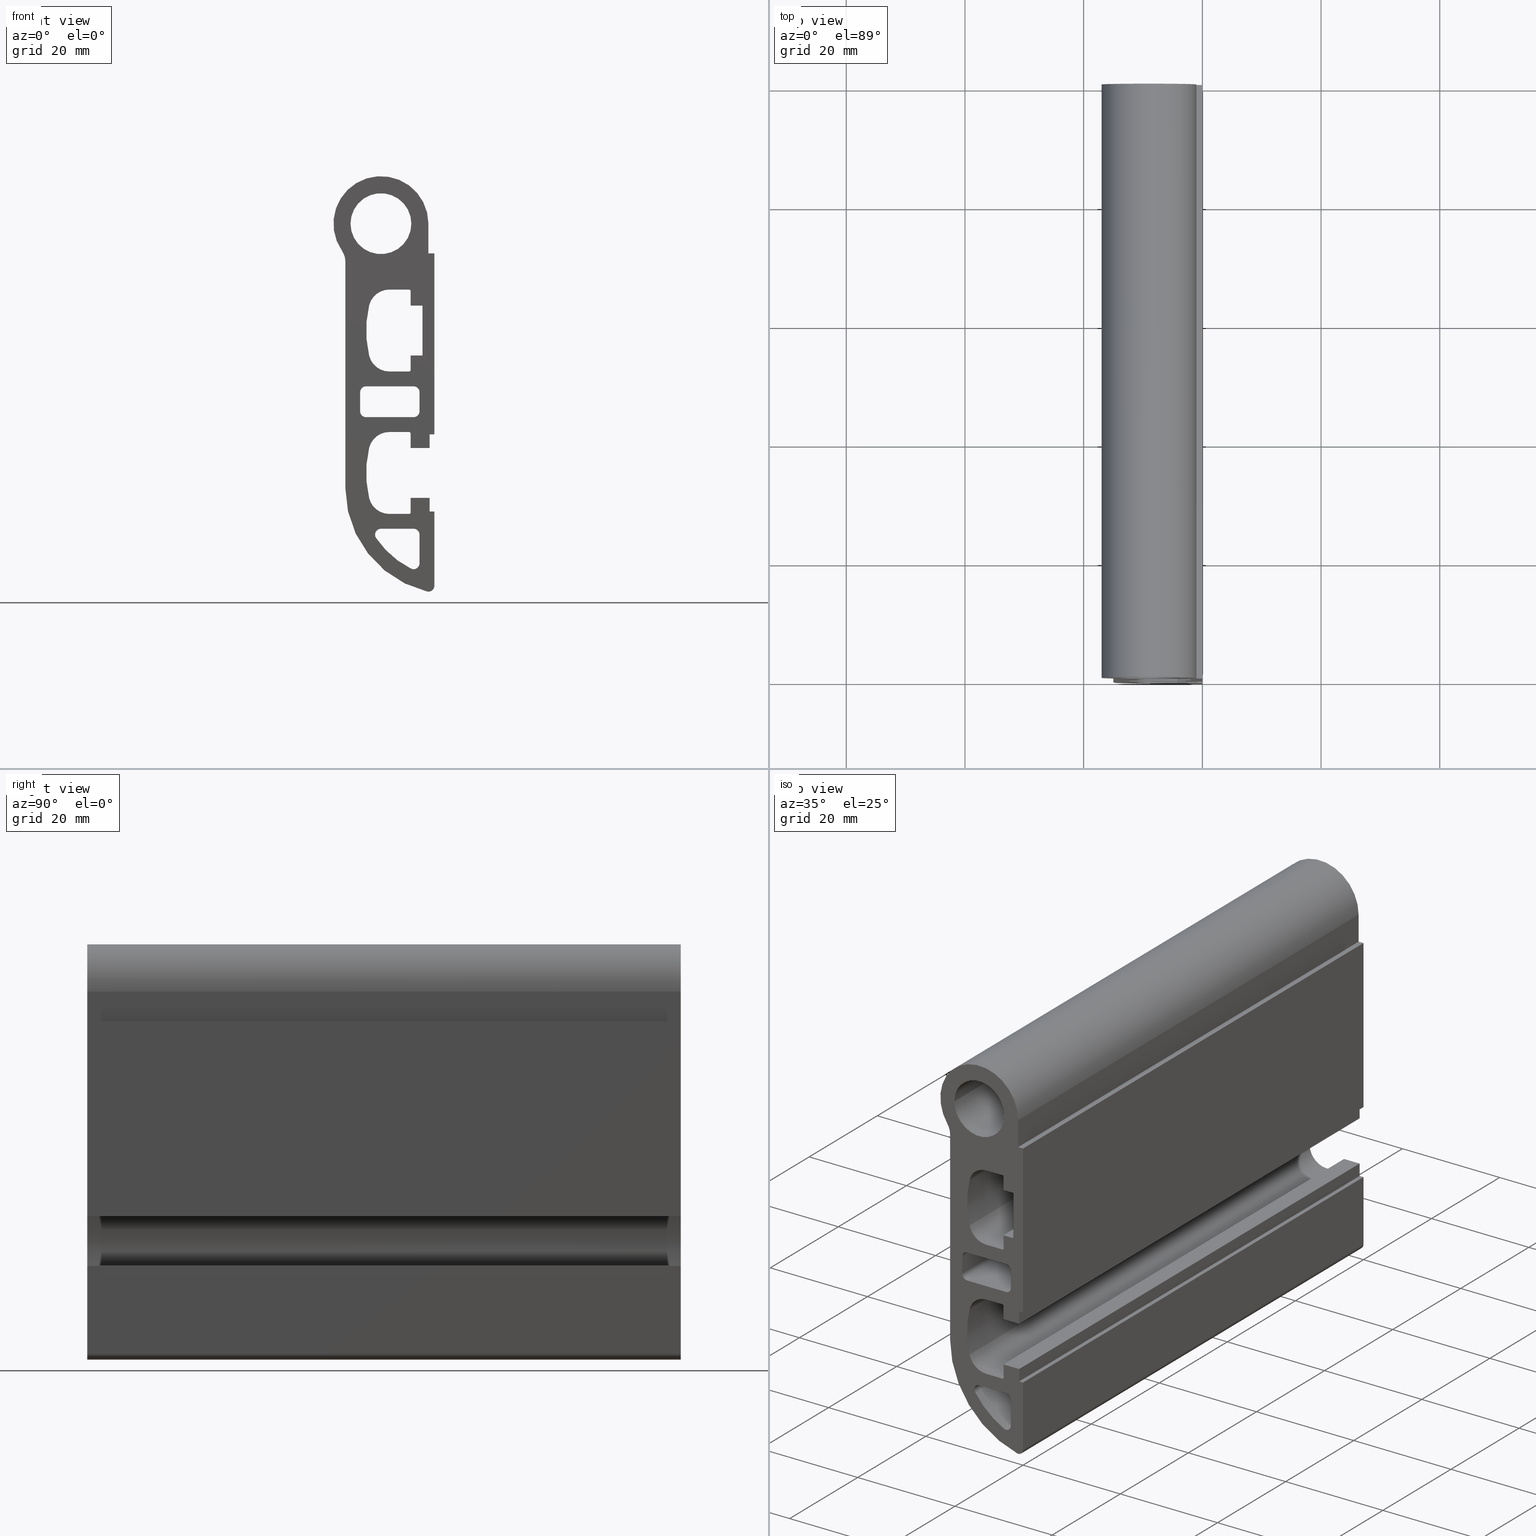
[diagram: canonical four-view strip — front | top / right | iso, engineering-drawing reading convention]
A machine part, canonical four-view strip (front | top / right | iso — engineering-drawing reading convention). The complete STEP part file that produces these views, byte-faithful:
ISO-10303-21;
HEADER;
/* Generated by software containing ST-Developer
 * from STEP Tools, Inc. (www.steptools.com) 
 */

FILE_DESCRIPTION(
/* description */ ('Translator using VaultInventorServer'),
/* implementation_level */ '2;1');

FILE_NAME(
/* name */ 
'C:\\DIERRE19\\Designs\\DIERRE\\PR\\CR\\0000000_0005000\\BPRCR0000027.
stp',
/* time_stamp */ '2020-09-29T08:38:47+02:00',
/* author */ ('Tecnico5'),
/* organization */ (''),
/* preprocessor_version */ 'ST-DEVELOPER v17.2',
/* originating_system */ 'Autodesk Inventor 2019',
/* authorisation */ '');

FILE_SCHEMA (('AUTOMOTIVE_DESIGN { 1 0 10303 214 3 1 1 }'));
ENDSEC;

DATA;
#10=MECHANICAL_DESIGN_GEOMETRIC_PRESENTATION_REPRESENTATION('',(#13),#1802);
#11=SHAPE_REPRESENTATION_RELATIONSHIP('SRR','None',#1809,#12);
#12=ADVANCED_BREP_SHAPE_REPRESENTATION('',(#14),#1801);
#13=STYLED_ITEM('',(#1818),#14);
#14=MANIFOLD_SOLID_BREP('Solido1',#1064);
#15=FACE_BOUND('',#197,.T.);
#16=FACE_BOUND('',#198,.T.);
#17=FACE_BOUND('',#199,.T.);
#18=FACE_BOUND('',#200,.T.);
#19=FACE_BOUND('',#202,.T.);
#20=FACE_BOUND('',#203,.T.);
#21=FACE_BOUND('',#204,.T.);
#22=FACE_BOUND('',#205,.T.);
#23=CIRCLE('',#1087,0.25);
#24=CIRCLE('',#1088,0.25);
#25=CIRCLE('',#1091,3.5);
#26=CIRCLE('',#1092,3.5);
#27=CIRCLE('',#1094,18.);
#28=CIRCLE('',#1095,18.);
#29=CIRCLE('',#1097,3.5);
#30=CIRCLE('',#1098,3.5);
#31=CIRCLE('',#1101,0.25);
#32=CIRCLE('',#1102,0.25);
#33=CIRCLE('',#1107,5.125);
#34=CIRCLE('',#1108,5.125);
#35=CIRCLE('',#1110,1.);
#36=CIRCLE('',#1111,1.);
#37=CIRCLE('',#1114,1.);
#38=CIRCLE('',#1115,1.);
#39=CIRCLE('',#1118,1.);
#40=CIRCLE('',#1119,1.);
#41=CIRCLE('',#1122,1.);
#42=CIRCLE('',#1123,1.);
#43=CIRCLE('',#1126,1.);
#44=CIRCLE('',#1127,1.);
#45=CIRCLE('',#1130,1.);
#46=CIRCLE('',#1131,1.);
#47=CIRCLE('',#1133,15.5);
#48=CIRCLE('',#1134,15.5);
#49=CIRCLE('',#1136,1.);
#50=CIRCLE('',#1137,1.);
#51=CIRCLE('',#1142,8.);
#52=CIRCLE('',#1143,8.);
#53=CIRCLE('',#1145,3.);
#54=CIRCLE('',#1146,3.);
#55=CIRCLE('',#1149,18.);
#56=CIRCLE('',#1150,18.);
#57=CIRCLE('',#1152,1.);
#58=CIRCLE('',#1153,1.);
#59=CIRCLE('',#1160,0.25);
#60=CIRCLE('',#1161,0.25);
#61=CIRCLE('',#1164,3.50000000000001);
#62=CIRCLE('',#1165,3.50000000000001);
#63=CIRCLE('',#1167,18.0000000000002);
#64=CIRCLE('',#1168,18.0000000000002);
#65=CIRCLE('',#1170,3.5);
#66=CIRCLE('',#1171,3.5);
#67=CIRCLE('',#1174,0.25);
#68=CIRCLE('',#1175,0.25);
#69=CYLINDRICAL_SURFACE('',#1086,0.25);
#70=CYLINDRICAL_SURFACE('',#1090,3.5);
#71=CYLINDRICAL_SURFACE('',#1093,18.);
#72=CYLINDRICAL_SURFACE('',#1096,3.5);
#73=CYLINDRICAL_SURFACE('',#1100,0.25);
#74=CYLINDRICAL_SURFACE('',#1106,5.125);
#75=CYLINDRICAL_SURFACE('',#1109,1.);
#76=CYLINDRICAL_SURFACE('',#1113,1.);
#77=CYLINDRICAL_SURFACE('',#1117,1.);
#78=CYLINDRICAL_SURFACE('',#1121,1.);
#79=CYLINDRICAL_SURFACE('',#1125,1.);
#80=CYLINDRICAL_SURFACE('',#1129,1.);
#81=CYLINDRICAL_SURFACE('',#1132,15.5);
#82=CYLINDRICAL_SURFACE('',#1135,1.);
#83=CYLINDRICAL_SURFACE('',#1141,8.);
#84=CYLINDRICAL_SURFACE('',#1144,3.);
#85=CYLINDRICAL_SURFACE('',#1148,18.);
#86=CYLINDRICAL_SURFACE('',#1151,1.);
#87=CYLINDRICAL_SURFACE('',#1159,0.25);
#88=CYLINDRICAL_SURFACE('',#1163,3.50000000000001);
#89=CYLINDRICAL_SURFACE('',#1166,18.0000000000002);
#90=CYLINDRICAL_SURFACE('',#1169,3.5);
#91=CYLINDRICAL_SURFACE('',#1173,0.25);
#92=FACE_OUTER_BOUND('',#145,.T.);
#93=FACE_OUTER_BOUND('',#146,.T.);
#94=FACE_OUTER_BOUND('',#147,.T.);
#95=FACE_OUTER_BOUND('',#148,.T.);
#96=FACE_OUTER_BOUND('',#149,.T.);
#97=FACE_OUTER_BOUND('',#150,.T.);
#98=FACE_OUTER_BOUND('',#151,.T.);
#99=FACE_OUTER_BOUND('',#152,.T.);
#100=FACE_OUTER_BOUND('',#153,.T.);
#101=FACE_OUTER_BOUND('',#154,.T.);
#102=FACE_OUTER_BOUND('',#155,.T.);
#103=FACE_OUTER_BOUND('',#156,.T.);
#104=FACE_OUTER_BOUND('',#157,.T.);
#105=FACE_OUTER_BOUND('',#158,.T.);
#106=FACE_OUTER_BOUND('',#159,.T.);
#107=FACE_OUTER_BOUND('',#160,.T.);
#108=FACE_OUTER_BOUND('',#161,.T.);
#109=FACE_OUTER_BOUND('',#162,.T.);
#110=FACE_OUTER_BOUND('',#163,.T.);
#111=FACE_OUTER_BOUND('',#164,.T.);
#112=FACE_OUTER_BOUND('',#165,.T.);
#113=FACE_OUTER_BOUND('',#166,.T.);
#114=FACE_OUTER_BOUND('',#167,.T.);
#115=FACE_OUTER_BOUND('',#168,.T.);
#116=FACE_OUTER_BOUND('',#169,.T.);
#117=FACE_OUTER_BOUND('',#170,.T.);
#118=FACE_OUTER_BOUND('',#171,.T.);
#119=FACE_OUTER_BOUND('',#172,.T.);
#120=FACE_OUTER_BOUND('',#173,.T.);
#121=FACE_OUTER_BOUND('',#174,.T.);
#122=FACE_OUTER_BOUND('',#175,.T.);
#123=FACE_OUTER_BOUND('',#176,.T.);
#124=FACE_OUTER_BOUND('',#177,.T.);
#125=FACE_OUTER_BOUND('',#178,.T.);
#126=FACE_OUTER_BOUND('',#179,.T.);
#127=FACE_OUTER_BOUND('',#180,.T.);
#128=FACE_OUTER_BOUND('',#181,.T.);
#129=FACE_OUTER_BOUND('',#182,.T.);
#130=FACE_OUTER_BOUND('',#183,.T.);
#131=FACE_OUTER_BOUND('',#184,.T.);
#132=FACE_OUTER_BOUND('',#185,.T.);
#133=FACE_OUTER_BOUND('',#186,.T.);
#134=FACE_OUTER_BOUND('',#187,.T.);
#135=FACE_OUTER_BOUND('',#188,.T.);
#136=FACE_OUTER_BOUND('',#189,.T.);
#137=FACE_OUTER_BOUND('',#190,.T.);
#138=FACE_OUTER_BOUND('',#191,.T.);
#139=FACE_OUTER_BOUND('',#192,.T.);
#140=FACE_OUTER_BOUND('',#193,.T.);
#141=FACE_OUTER_BOUND('',#194,.T.);
#142=FACE_OUTER_BOUND('',#195,.T.);
#143=FACE_OUTER_BOUND('',#196,.T.);
#144=FACE_OUTER_BOUND('',#201,.T.);
#145=EDGE_LOOP('',(#675,#676,#677,#678));
#146=EDGE_LOOP('',(#679,#680,#681,#682));
#147=EDGE_LOOP('',(#683,#684,#685,#686));
#148=EDGE_LOOP('',(#687,#688,#689,#690));
#149=EDGE_LOOP('',(#691,#692,#693,#694));
#150=EDGE_LOOP('',(#695,#696,#697,#698));
#151=EDGE_LOOP('',(#699,#700,#701,#702));
#152=EDGE_LOOP('',(#703,#704,#705,#706));
#153=EDGE_LOOP('',(#707,#708,#709,#710));
#154=EDGE_LOOP('',(#711,#712,#713,#714));
#155=EDGE_LOOP('',(#715,#716,#717,#718));
#156=EDGE_LOOP('',(#719,#720,#721,#722));
#157=EDGE_LOOP('',(#723,#724,#725,#726));
#158=EDGE_LOOP('',(#727,#728,#729,#730));
#159=EDGE_LOOP('',(#731,#732,#733,#734));
#160=EDGE_LOOP('',(#735,#736,#737,#738));
#161=EDGE_LOOP('',(#739,#740,#741,#742));
#162=EDGE_LOOP('',(#743,#744,#745,#746));
#163=EDGE_LOOP('',(#747,#748,#749,#750));
#164=EDGE_LOOP('',(#751,#752,#753,#754));
#165=EDGE_LOOP('',(#755,#756,#757,#758));
#166=EDGE_LOOP('',(#759,#760,#761,#762));
#167=EDGE_LOOP('',(#763,#764,#765,#766));
#168=EDGE_LOOP('',(#767,#768,#769,#770));
#169=EDGE_LOOP('',(#771,#772,#773,#774));
#170=EDGE_LOOP('',(#775,#776,#777,#778));
#171=EDGE_LOOP('',(#779,#780,#781,#782));
#172=EDGE_LOOP('',(#783,#784,#785,#786));
#173=EDGE_LOOP('',(#787,#788,#789,#790));
#174=EDGE_LOOP('',(#791,#792,#793,#794));
#175=EDGE_LOOP('',(#795,#796,#797,#798));
#176=EDGE_LOOP('',(#799,#800,#801,#802));
#177=EDGE_LOOP('',(#803,#804,#805,#806));
#178=EDGE_LOOP('',(#807,#808,#809,#810));
#179=EDGE_LOOP('',(#811,#812,#813,#814));
#180=EDGE_LOOP('',(#815,#816,#817,#818));
#181=EDGE_LOOP('',(#819,#820,#821,#822));
#182=EDGE_LOOP('',(#823,#824,#825,#826));
#183=EDGE_LOOP('',(#827,#828,#829,#830));
#184=EDGE_LOOP('',(#831,#832,#833,#834));
#185=EDGE_LOOP('',(#835,#836,#837,#838));
#186=EDGE_LOOP('',(#839,#840,#841,#842));
#187=EDGE_LOOP('',(#843,#844,#845,#846));
#188=EDGE_LOOP('',(#847,#848,#849,#850));
#189=EDGE_LOOP('',(#851,#852,#853,#854));
#190=EDGE_LOOP('',(#855,#856,#857,#858));
#191=EDGE_LOOP('',(#859,#860,#861,#862));
#192=EDGE_LOOP('',(#863,#864,#865,#866));
#193=EDGE_LOOP('',(#867,#868,#869,#870));
#194=EDGE_LOOP('',(#871,#872,#873,#874));
#195=EDGE_LOOP('',(#875,#876,#877,#878));
#196=EDGE_LOOP('',(#879,#880,#881,#882,#883,#884,#885,#886,#887,#888,#889,
#890,#891,#892,#893,#894,#895,#896,#897,#898,#899,#900,#901,#902));
#197=EDGE_LOOP('',(#903,#904,#905,#906,#907,#908,#909,#910,#911,#912,#913,
#914));
#198=EDGE_LOOP('',(#915));
#199=EDGE_LOOP('',(#916,#917,#918,#919,#920,#921,#922,#923));
#200=EDGE_LOOP('',(#924,#925,#926,#927,#928,#929));
#201=EDGE_LOOP('',(#930,#931,#932,#933,#934,#935,#936,#937,#938,#939,#940,
#941,#942,#943,#944,#945,#946,#947,#948,#949,#950,#951,#952,#953));
#202=EDGE_LOOP('',(#954,#955,#956,#957,#958,#959,#960,#961,#962,#963,#964,
#965));
#203=EDGE_LOOP('',(#966));
#204=EDGE_LOOP('',(#967,#968,#969,#970,#971,#972,#973,#974));
#205=EDGE_LOOP('',(#975,#976,#977,#978,#979,#980));
#206=LINE('',#1494,#313);
#207=LINE('',#1496,#314);
#208=LINE('',#1498,#315);
#209=LINE('',#1499,#316);
#210=LINE('',#1502,#317);
#211=LINE('',#1504,#318);
#212=LINE('',#1505,#319);
#213=LINE('',#1510,#320);
#214=LINE('',#1514,#321);
#215=LINE('',#1516,#322);
#216=LINE('',#1517,#323);
#217=LINE('',#1522,#324);
#218=LINE('',#1528,#325);
#219=LINE('',#1534,#326);
#220=LINE('',#1538,#327);
#221=LINE('',#1540,#328);
#222=LINE('',#1541,#329);
#223=LINE('',#1546,#330);
#224=LINE('',#1550,#331);
#225=LINE('',#1552,#332);
#226=LINE('',#1553,#333);
#227=LINE('',#1556,#334);
#228=LINE('',#1558,#335);
#229=LINE('',#1559,#336);
#230=LINE('',#1561,#337);
#231=LINE('',#1562,#338);
#232=LINE('',#1567,#339);
#233=LINE('',#1574,#340);
#234=LINE('',#1577,#341);
#235=LINE('',#1580,#342);
#236=LINE('',#1582,#343);
#237=LINE('',#1583,#344);
#238=LINE('',#1588,#345);
#239=LINE('',#1592,#346);
#240=LINE('',#1594,#347);
#241=LINE('',#1595,#348);
#242=LINE('',#1600,#349);
#243=LINE('',#1604,#350);
#244=LINE('',#1606,#351);
#245=LINE('',#1607,#352);
#246=LINE('',#1612,#353);
#247=LINE('',#1615,#354);
#248=LINE('',#1616,#355);
#249=LINE('',#1622,#356);
#250=LINE('',#1625,#357);
#251=LINE('',#1628,#358);
#252=LINE('',#1630,#359);
#253=LINE('',#1631,#360);
#254=LINE('',#1636,#361);
#255=LINE('',#1642,#362);
#256=LINE('',#1648,#363);
#257=LINE('',#1651,#364);
#258=LINE('',#1652,#365);
#259=LINE('',#1656,#366);
#260=LINE('',#1658,#367);
#261=LINE('',#1660,#368);
#262=LINE('',#1661,#369);
#263=LINE('',#1664,#370);
#264=LINE('',#1666,#371);
#265=LINE('',#1667,#372);
#266=LINE('',#1673,#373);
#267=LINE('',#1679,#374);
#268=LINE('',#1682,#375);
#269=LINE('',#1684,#376);
#270=LINE('',#1685,#377);
#271=LINE('',#1691,#378);
#272=LINE('',#1697,#379);
#273=LINE('',#1700,#380);
#274=LINE('',#1702,#381);
#275=LINE('',#1703,#382);
#276=LINE('',#1706,#383);
#277=LINE('',#1708,#384);
#278=LINE('',#1709,#385);
#279=LINE('',#1712,#386);
#280=LINE('',#1714,#387);
#281=LINE('',#1715,#388);
#282=LINE('',#1718,#389);
#283=LINE('',#1720,#390);
#284=LINE('',#1721,#391);
#285=LINE('',#1724,#392);
#286=LINE('',#1726,#393);
#287=LINE('',#1727,#394);
#288=LINE('',#1733,#395);
#289=LINE('',#1736,#396);
#290=LINE('',#1738,#397);
#291=LINE('',#1739,#398);
#292=LINE('',#1745,#399);
#293=LINE('',#1751,#400);
#294=LINE('',#1757,#401);
#295=LINE('',#1760,#402);
#296=LINE('',#1762,#403);
#297=LINE('',#1763,#404);
#298=LINE('',#1769,#405);
#299=LINE('',#1772,#406);
#300=LINE('',#1774,#407);
#301=LINE('',#1775,#408);
#302=LINE('',#1778,#409);
#303=LINE('',#1780,#410);
#304=LINE('',#1781,#411);
#305=LINE('',#1784,#412);
#306=LINE('',#1786,#413);
#307=LINE('',#1787,#414);
#308=LINE('',#1790,#415);
#309=LINE('',#1792,#416);
#310=LINE('',#1793,#417);
#311=LINE('',#1795,#418);
#312=LINE('',#1796,#419);
#313=VECTOR('',#1187,10.);
#314=VECTOR('',#1188,10.);
#315=VECTOR('',#1189,10.);
#316=VECTOR('',#1190,10.);
#317=VECTOR('',#1193,10.);
#318=VECTOR('',#1194,10.);
#319=VECTOR('',#1195,10.);
#320=VECTOR('',#1200,10.);
#321=VECTOR('',#1205,10.);
#322=VECTOR('',#1206,10.);
#323=VECTOR('',#1207,10.);
#324=VECTOR('',#1212,10.);
#325=VECTOR('',#1219,10.);
#326=VECTOR('',#1226,10.);
#327=VECTOR('',#1231,10.);
#328=VECTOR('',#1232,10.);
#329=VECTOR('',#1233,10.);
#330=VECTOR('',#1238,10.);
#331=VECTOR('',#1243,10.);
#332=VECTOR('',#1244,10.);
#333=VECTOR('',#1245,10.);
#334=VECTOR('',#1248,10.);
#335=VECTOR('',#1249,10.);
#336=VECTOR('',#1250,10.);
#337=VECTOR('',#1253,10.);
#338=VECTOR('',#1254,10.);
#339=VECTOR('',#1259,5.125);
#340=VECTOR('',#1266,10.);
#341=VECTOR('',#1269,10.);
#342=VECTOR('',#1272,10.);
#343=VECTOR('',#1273,10.);
#344=VECTOR('',#1274,10.);
#345=VECTOR('',#1279,10.);
#346=VECTOR('',#1284,10.);
#347=VECTOR('',#1285,10.);
#348=VECTOR('',#1286,10.);
#349=VECTOR('',#1291,10.);
#350=VECTOR('',#1296,10.);
#351=VECTOR('',#1297,10.);
#352=VECTOR('',#1298,10.);
#353=VECTOR('',#1303,10.);
#354=VECTOR('',#1308,10.);
#355=VECTOR('',#1309,10.);
#356=VECTOR('',#1314,10.);
#357=VECTOR('',#1317,10.);
#358=VECTOR('',#1320,10.);
#359=VECTOR('',#1321,10.);
#360=VECTOR('',#1322,10.);
#361=VECTOR('',#1327,10.);
#362=VECTOR('',#1334,10.);
#363=VECTOR('',#1341,10.);
#364=VECTOR('',#1346,10.);
#365=VECTOR('',#1347,10.);
#366=VECTOR('',#1350,10.);
#367=VECTOR('',#1351,10.);
#368=VECTOR('',#1352,10.);
#369=VECTOR('',#1353,10.);
#370=VECTOR('',#1356,10.);
#371=VECTOR('',#1357,10.);
#372=VECTOR('',#1358,10.);
#373=VECTOR('',#1365,10.);
#374=VECTOR('',#1372,10.);
#375=VECTOR('',#1375,10.);
#376=VECTOR('',#1376,10.);
#377=VECTOR('',#1377,10.);
#378=VECTOR('',#1384,10.);
#379=VECTOR('',#1391,10.);
#380=VECTOR('',#1394,10.);
#381=VECTOR('',#1395,10.);
#382=VECTOR('',#1396,10.);
#383=VECTOR('',#1399,10.);
#384=VECTOR('',#1400,10.);
#385=VECTOR('',#1401,10.);
#386=VECTOR('',#1404,10.);
#387=VECTOR('',#1405,10.);
#388=VECTOR('',#1406,10.);
#389=VECTOR('',#1409,10.);
#390=VECTOR('',#1410,10.);
#391=VECTOR('',#1411,10.);
#392=VECTOR('',#1414,10.);
#393=VECTOR('',#1415,10.);
#394=VECTOR('',#1416,10.);
#395=VECTOR('',#1423,10.);
#396=VECTOR('',#1426,10.);
#397=VECTOR('',#1427,10.);
#398=VECTOR('',#1428,10.);
#399=VECTOR('',#1435,10.);
#400=VECTOR('',#1442,10.);
#401=VECTOR('',#1449,10.);
#402=VECTOR('',#1452,10.);
#403=VECTOR('',#1453,10.);
#404=VECTOR('',#1454,10.);
#405=VECTOR('',#1461,10.);
#406=VECTOR('',#1464,10.);
#407=VECTOR('',#1465,10.);
#408=VECTOR('',#1466,10.);
#409=VECTOR('',#1469,10.);
#410=VECTOR('',#1470,10.);
#411=VECTOR('',#1471,10.);
#412=VECTOR('',#1474,10.);
#413=VECTOR('',#1475,10.);
#414=VECTOR('',#1476,10.);
#415=VECTOR('',#1479,10.);
#416=VECTOR('',#1480,10.);
#417=VECTOR('',#1481,10.);
#418=VECTOR('',#1484,10.);
#419=VECTOR('',#1485,10.);
#420=VERTEX_POINT('',#1492);
#421=VERTEX_POINT('',#1493);
#422=VERTEX_POINT('',#1495);
#423=VERTEX_POINT('',#1497);
#424=VERTEX_POINT('',#1501);
#425=VERTEX_POINT('',#1503);
#426=VERTEX_POINT('',#1507);
#427=VERTEX_POINT('',#1509);
#428=VERTEX_POINT('',#1513);
#429=VERTEX_POINT('',#1515);
#430=VERTEX_POINT('',#1519);
#431=VERTEX_POINT('',#1521);
#432=VERTEX_POINT('',#1525);
#433=VERTEX_POINT('',#1527);
#434=VERTEX_POINT('',#1531);
#435=VERTEX_POINT('',#1533);
#436=VERTEX_POINT('',#1537);
#437=VERTEX_POINT('',#1539);
#438=VERTEX_POINT('',#1543);
#439=VERTEX_POINT('',#1545);
#440=VERTEX_POINT('',#1549);
#441=VERTEX_POINT('',#1551);
#442=VERTEX_POINT('',#1555);
#443=VERTEX_POINT('',#1557);
#444=VERTEX_POINT('',#1564);
#445=VERTEX_POINT('',#1566);
#446=VERTEX_POINT('',#1570);
#447=VERTEX_POINT('',#1571);
#448=VERTEX_POINT('',#1573);
#449=VERTEX_POINT('',#1575);
#450=VERTEX_POINT('',#1579);
#451=VERTEX_POINT('',#1581);
#452=VERTEX_POINT('',#1585);
#453=VERTEX_POINT('',#1587);
#454=VERTEX_POINT('',#1591);
#455=VERTEX_POINT('',#1593);
#456=VERTEX_POINT('',#1597);
#457=VERTEX_POINT('',#1599);
#458=VERTEX_POINT('',#1603);
#459=VERTEX_POINT('',#1605);
#460=VERTEX_POINT('',#1609);
#461=VERTEX_POINT('',#1611);
#462=VERTEX_POINT('',#1618);
#463=VERTEX_POINT('',#1619);
#464=VERTEX_POINT('',#1621);
#465=VERTEX_POINT('',#1623);
#466=VERTEX_POINT('',#1627);
#467=VERTEX_POINT('',#1629);
#468=VERTEX_POINT('',#1633);
#469=VERTEX_POINT('',#1635);
#470=VERTEX_POINT('',#1639);
#471=VERTEX_POINT('',#1641);
#472=VERTEX_POINT('',#1645);
#473=VERTEX_POINT('',#1647);
#474=VERTEX_POINT('',#1654);
#475=VERTEX_POINT('',#1655);
#476=VERTEX_POINT('',#1657);
#477=VERTEX_POINT('',#1659);
#478=VERTEX_POINT('',#1663);
#479=VERTEX_POINT('',#1665);
#480=VERTEX_POINT('',#1669);
#481=VERTEX_POINT('',#1671);
#482=VERTEX_POINT('',#1675);
#483=VERTEX_POINT('',#1677);
#484=VERTEX_POINT('',#1681);
#485=VERTEX_POINT('',#1683);
#486=VERTEX_POINT('',#1687);
#487=VERTEX_POINT('',#1689);
#488=VERTEX_POINT('',#1693);
#489=VERTEX_POINT('',#1695);
#490=VERTEX_POINT('',#1699);
#491=VERTEX_POINT('',#1701);
#492=VERTEX_POINT('',#1705);
#493=VERTEX_POINT('',#1707);
#494=VERTEX_POINT('',#1711);
#495=VERTEX_POINT('',#1713);
#496=VERTEX_POINT('',#1717);
#497=VERTEX_POINT('',#1719);
#498=VERTEX_POINT('',#1723);
#499=VERTEX_POINT('',#1725);
#500=VERTEX_POINT('',#1729);
#501=VERTEX_POINT('',#1731);
#502=VERTEX_POINT('',#1735);
#503=VERTEX_POINT('',#1737);
#504=VERTEX_POINT('',#1741);
#505=VERTEX_POINT('',#1743);
#506=VERTEX_POINT('',#1747);
#507=VERTEX_POINT('',#1749);
#508=VERTEX_POINT('',#1753);
#509=VERTEX_POINT('',#1755);
#510=VERTEX_POINT('',#1759);
#511=VERTEX_POINT('',#1761);
#512=VERTEX_POINT('',#1765);
#513=VERTEX_POINT('',#1767);
#514=VERTEX_POINT('',#1771);
#515=VERTEX_POINT('',#1773);
#516=VERTEX_POINT('',#1777);
#517=VERTEX_POINT('',#1779);
#518=VERTEX_POINT('',#1783);
#519=VERTEX_POINT('',#1785);
#520=VERTEX_POINT('',#1789);
#521=VERTEX_POINT('',#1791);
#522=EDGE_CURVE('',#420,#421,#206,.T.);
#523=EDGE_CURVE('',#420,#422,#207,.T.);
#524=EDGE_CURVE('',#423,#422,#208,.T.);
#525=EDGE_CURVE('',#421,#423,#209,.T.);
#526=EDGE_CURVE('',#424,#420,#210,.T.);
#527=EDGE_CURVE('',#424,#425,#211,.T.);
#528=EDGE_CURVE('',#422,#425,#212,.T.);
#529=EDGE_CURVE('',#426,#424,#23,.T.);
#530=EDGE_CURVE('',#426,#427,#213,.T.);
#531=EDGE_CURVE('',#425,#427,#24,.T.);
#532=EDGE_CURVE('',#428,#426,#214,.T.);
#533=EDGE_CURVE('',#428,#429,#215,.T.);
#534=EDGE_CURVE('',#427,#429,#216,.T.);
#535=EDGE_CURVE('',#430,#428,#25,.T.);
#536=EDGE_CURVE('',#430,#431,#217,.T.);
#537=EDGE_CURVE('',#429,#431,#26,.T.);
#538=EDGE_CURVE('',#432,#430,#27,.T.);
#539=EDGE_CURVE('',#432,#433,#218,.T.);
#540=EDGE_CURVE('',#431,#433,#28,.T.);
#541=EDGE_CURVE('',#434,#432,#29,.T.);
#542=EDGE_CURVE('',#434,#435,#219,.T.);
#543=EDGE_CURVE('',#433,#435,#30,.T.);
#544=EDGE_CURVE('',#436,#434,#220,.T.);
#545=EDGE_CURVE('',#436,#437,#221,.T.);
#546=EDGE_CURVE('',#435,#437,#222,.T.);
#547=EDGE_CURVE('',#438,#436,#31,.T.);
#548=EDGE_CURVE('',#438,#439,#223,.T.);
#549=EDGE_CURVE('',#437,#439,#32,.T.);
#550=EDGE_CURVE('',#440,#438,#224,.T.);
#551=EDGE_CURVE('',#440,#441,#225,.T.);
#552=EDGE_CURVE('',#439,#441,#226,.T.);
#553=EDGE_CURVE('',#442,#440,#227,.T.);
#554=EDGE_CURVE('',#442,#443,#228,.T.);
#555=EDGE_CURVE('',#441,#443,#229,.T.);
#556=EDGE_CURVE('',#421,#442,#230,.T.);
#557=EDGE_CURVE('',#443,#423,#231,.T.);
#558=EDGE_CURVE('',#444,#444,#33,.T.);
#559=EDGE_CURVE('',#444,#445,#232,.T.);
#560=EDGE_CURVE('',#445,#445,#34,.T.);
#561=EDGE_CURVE('',#446,#447,#35,.T.);
#562=EDGE_CURVE('',#446,#448,#233,.T.);
#563=EDGE_CURVE('',#449,#448,#36,.T.);
#564=EDGE_CURVE('',#447,#449,#234,.T.);
#565=EDGE_CURVE('',#450,#446,#235,.T.);
#566=EDGE_CURVE('',#450,#451,#236,.T.);
#567=EDGE_CURVE('',#448,#451,#237,.T.);
#568=EDGE_CURVE('',#452,#450,#37,.T.);
#569=EDGE_CURVE('',#452,#453,#238,.T.);
#570=EDGE_CURVE('',#451,#453,#38,.T.);
#571=EDGE_CURVE('',#454,#452,#239,.T.);
#572=EDGE_CURVE('',#454,#455,#240,.T.);
#573=EDGE_CURVE('',#453,#455,#241,.T.);
#574=EDGE_CURVE('',#456,#454,#39,.T.);
#575=EDGE_CURVE('',#456,#457,#242,.T.);
#576=EDGE_CURVE('',#455,#457,#40,.T.);
#577=EDGE_CURVE('',#458,#456,#243,.T.);
#578=EDGE_CURVE('',#458,#459,#244,.T.);
#579=EDGE_CURVE('',#457,#459,#245,.T.);
#580=EDGE_CURVE('',#460,#458,#41,.T.);
#581=EDGE_CURVE('',#460,#461,#246,.T.);
#582=EDGE_CURVE('',#459,#461,#42,.T.);
#583=EDGE_CURVE('',#447,#460,#247,.T.);
#584=EDGE_CURVE('',#461,#449,#248,.T.);
#585=EDGE_CURVE('',#462,#463,#43,.T.);
#586=EDGE_CURVE('',#462,#464,#249,.T.);
#587=EDGE_CURVE('',#465,#464,#44,.T.);
#588=EDGE_CURVE('',#463,#465,#250,.T.);
#589=EDGE_CURVE('',#466,#462,#251,.T.);
#590=EDGE_CURVE('',#466,#467,#252,.T.);
#591=EDGE_CURVE('',#464,#467,#253,.T.);
#592=EDGE_CURVE('',#468,#466,#45,.T.);
#593=EDGE_CURVE('',#468,#469,#254,.T.);
#594=EDGE_CURVE('',#467,#469,#46,.T.);
#595=EDGE_CURVE('',#470,#468,#47,.T.);
#596=EDGE_CURVE('',#470,#471,#255,.T.);
#597=EDGE_CURVE('',#469,#471,#48,.T.);
#598=EDGE_CURVE('',#472,#470,#49,.T.);
#599=EDGE_CURVE('',#472,#473,#256,.T.);
#600=EDGE_CURVE('',#471,#473,#50,.T.);
#601=EDGE_CURVE('',#463,#472,#257,.T.);
#602=EDGE_CURVE('',#473,#465,#258,.T.);
#603=EDGE_CURVE('',#474,#475,#259,.T.);
#604=EDGE_CURVE('',#474,#476,#260,.T.);
#605=EDGE_CURVE('',#477,#476,#261,.T.);
#606=EDGE_CURVE('',#475,#477,#262,.T.);
#607=EDGE_CURVE('',#475,#478,#263,.T.);
#608=EDGE_CURVE('',#479,#477,#264,.T.);
#609=EDGE_CURVE('',#478,#479,#265,.T.);
#610=EDGE_CURVE('',#478,#480,#51,.T.);
#611=EDGE_CURVE('',#481,#479,#52,.T.);
#612=EDGE_CURVE('',#480,#481,#266,.T.);
#613=EDGE_CURVE('',#480,#482,#53,.T.);
#614=EDGE_CURVE('',#483,#481,#54,.T.);
#615=EDGE_CURVE('',#482,#483,#267,.T.);
#616=EDGE_CURVE('',#482,#484,#268,.T.);
#617=EDGE_CURVE('',#485,#483,#269,.T.);
#618=EDGE_CURVE('',#484,#485,#270,.T.);
#619=EDGE_CURVE('',#484,#486,#55,.T.);
#620=EDGE_CURVE('',#487,#485,#56,.T.);
#621=EDGE_CURVE('',#486,#487,#271,.T.);
#622=EDGE_CURVE('',#486,#488,#57,.T.);
#623=EDGE_CURVE('',#489,#487,#58,.T.);
#624=EDGE_CURVE('',#488,#489,#272,.T.);
#625=EDGE_CURVE('',#488,#490,#273,.T.);
#626=EDGE_CURVE('',#491,#489,#274,.T.);
#627=EDGE_CURVE('',#490,#491,#275,.T.);
#628=EDGE_CURVE('',#490,#492,#276,.T.);
#629=EDGE_CURVE('',#493,#491,#277,.T.);
#630=EDGE_CURVE('',#492,#493,#278,.T.);
#631=EDGE_CURVE('',#492,#494,#279,.T.);
#632=EDGE_CURVE('',#495,#493,#280,.T.);
#633=EDGE_CURVE('',#494,#495,#281,.T.);
#634=EDGE_CURVE('',#494,#496,#282,.T.);
#635=EDGE_CURVE('',#497,#495,#283,.T.);
#636=EDGE_CURVE('',#496,#497,#284,.T.);
#637=EDGE_CURVE('',#496,#498,#285,.T.);
#638=EDGE_CURVE('',#499,#497,#286,.T.);
#639=EDGE_CURVE('',#498,#499,#287,.T.);
#640=EDGE_CURVE('',#498,#500,#59,.T.);
#641=EDGE_CURVE('',#501,#499,#60,.T.);
#642=EDGE_CURVE('',#500,#501,#288,.T.);
#643=EDGE_CURVE('',#500,#502,#289,.T.);
#644=EDGE_CURVE('',#503,#501,#290,.T.);
#645=EDGE_CURVE('',#502,#503,#291,.T.);
#646=EDGE_CURVE('',#502,#504,#61,.T.);
#647=EDGE_CURVE('',#505,#503,#62,.T.);
#648=EDGE_CURVE('',#504,#505,#292,.T.);
#649=EDGE_CURVE('',#504,#506,#63,.T.);
#650=EDGE_CURVE('',#507,#505,#64,.T.);
#651=EDGE_CURVE('',#506,#507,#293,.T.);
#652=EDGE_CURVE('',#506,#508,#65,.T.);
#653=EDGE_CURVE('',#509,#507,#66,.T.);
#654=EDGE_CURVE('',#508,#509,#294,.T.);
#655=EDGE_CURVE('',#508,#510,#295,.T.);
#656=EDGE_CURVE('',#511,#509,#296,.T.);
#657=EDGE_CURVE('',#510,#511,#297,.T.);
#658=EDGE_CURVE('',#510,#512,#67,.T.);
#659=EDGE_CURVE('',#513,#511,#68,.T.);
#660=EDGE_CURVE('',#512,#513,#298,.T.);
#661=EDGE_CURVE('',#512,#514,#299,.T.);
#662=EDGE_CURVE('',#515,#513,#300,.T.);
#663=EDGE_CURVE('',#514,#515,#301,.T.);
#664=EDGE_CURVE('',#514,#516,#302,.T.);
#665=EDGE_CURVE('',#517,#515,#303,.T.);
#666=EDGE_CURVE('',#516,#517,#304,.T.);
#667=EDGE_CURVE('',#516,#518,#305,.T.);
#668=EDGE_CURVE('',#519,#517,#306,.T.);
#669=EDGE_CURVE('',#518,#519,#307,.T.);
#670=EDGE_CURVE('',#518,#520,#308,.T.);
#671=EDGE_CURVE('',#521,#519,#309,.T.);
#672=EDGE_CURVE('',#520,#521,#310,.T.);
#673=EDGE_CURVE('',#520,#474,#311,.T.);
#674=EDGE_CURVE('',#476,#521,#312,.T.);
#675=ORIENTED_EDGE('',*,*,#522,.F.);
#676=ORIENTED_EDGE('',*,*,#523,.T.);
#677=ORIENTED_EDGE('',*,*,#524,.F.);
#678=ORIENTED_EDGE('',*,*,#525,.F.);
#679=ORIENTED_EDGE('',*,*,#526,.F.);
#680=ORIENTED_EDGE('',*,*,#527,.T.);
#681=ORIENTED_EDGE('',*,*,#528,.F.);
#682=ORIENTED_EDGE('',*,*,#523,.F.);
#683=ORIENTED_EDGE('',*,*,#529,.F.);
#684=ORIENTED_EDGE('',*,*,#530,.T.);
#685=ORIENTED_EDGE('',*,*,#531,.F.);
#686=ORIENTED_EDGE('',*,*,#527,.F.);
#687=ORIENTED_EDGE('',*,*,#532,.F.);
#688=ORIENTED_EDGE('',*,*,#533,.T.);
#689=ORIENTED_EDGE('',*,*,#534,.F.);
#690=ORIENTED_EDGE('',*,*,#530,.F.);
#691=ORIENTED_EDGE('',*,*,#535,.F.);
#692=ORIENTED_EDGE('',*,*,#536,.T.);
#693=ORIENTED_EDGE('',*,*,#537,.F.);
#694=ORIENTED_EDGE('',*,*,#533,.F.);
#695=ORIENTED_EDGE('',*,*,#538,.F.);
#696=ORIENTED_EDGE('',*,*,#539,.T.);
#697=ORIENTED_EDGE('',*,*,#540,.F.);
#698=ORIENTED_EDGE('',*,*,#536,.F.);
#699=ORIENTED_EDGE('',*,*,#541,.F.);
#700=ORIENTED_EDGE('',*,*,#542,.T.);
#701=ORIENTED_EDGE('',*,*,#543,.F.);
#702=ORIENTED_EDGE('',*,*,#539,.F.);
#703=ORIENTED_EDGE('',*,*,#544,.F.);
#704=ORIENTED_EDGE('',*,*,#545,.T.);
#705=ORIENTED_EDGE('',*,*,#546,.F.);
#706=ORIENTED_EDGE('',*,*,#542,.F.);
#707=ORIENTED_EDGE('',*,*,#547,.F.);
#708=ORIENTED_EDGE('',*,*,#548,.T.);
#709=ORIENTED_EDGE('',*,*,#549,.F.);
#710=ORIENTED_EDGE('',*,*,#545,.F.);
#711=ORIENTED_EDGE('',*,*,#550,.F.);
#712=ORIENTED_EDGE('',*,*,#551,.T.);
#713=ORIENTED_EDGE('',*,*,#552,.F.);
#714=ORIENTED_EDGE('',*,*,#548,.F.);
#715=ORIENTED_EDGE('',*,*,#553,.F.);
#716=ORIENTED_EDGE('',*,*,#554,.T.);
#717=ORIENTED_EDGE('',*,*,#555,.F.);
#718=ORIENTED_EDGE('',*,*,#551,.F.);
#719=ORIENTED_EDGE('',*,*,#556,.F.);
#720=ORIENTED_EDGE('',*,*,#525,.T.);
#721=ORIENTED_EDGE('',*,*,#557,.F.);
#722=ORIENTED_EDGE('',*,*,#554,.F.);
#723=ORIENTED_EDGE('',*,*,#558,.F.);
#724=ORIENTED_EDGE('',*,*,#559,.T.);
#725=ORIENTED_EDGE('',*,*,#560,.F.);
#726=ORIENTED_EDGE('',*,*,#559,.F.);
#727=ORIENTED_EDGE('',*,*,#561,.F.);
#728=ORIENTED_EDGE('',*,*,#562,.T.);
#729=ORIENTED_EDGE('',*,*,#563,.F.);
#730=ORIENTED_EDGE('',*,*,#564,.F.);
#731=ORIENTED_EDGE('',*,*,#565,.F.);
#732=ORIENTED_EDGE('',*,*,#566,.T.);
#733=ORIENTED_EDGE('',*,*,#567,.F.);
#734=ORIENTED_EDGE('',*,*,#562,.F.);
#735=ORIENTED_EDGE('',*,*,#568,.F.);
#736=ORIENTED_EDGE('',*,*,#569,.T.);
#737=ORIENTED_EDGE('',*,*,#570,.F.);
#738=ORIENTED_EDGE('',*,*,#566,.F.);
#739=ORIENTED_EDGE('',*,*,#571,.F.);
#740=ORIENTED_EDGE('',*,*,#572,.T.);
#741=ORIENTED_EDGE('',*,*,#573,.F.);
#742=ORIENTED_EDGE('',*,*,#569,.F.);
#743=ORIENTED_EDGE('',*,*,#574,.F.);
#744=ORIENTED_EDGE('',*,*,#575,.T.);
#745=ORIENTED_EDGE('',*,*,#576,.F.);
#746=ORIENTED_EDGE('',*,*,#572,.F.);
#747=ORIENTED_EDGE('',*,*,#577,.F.);
#748=ORIENTED_EDGE('',*,*,#578,.T.);
#749=ORIENTED_EDGE('',*,*,#579,.F.);
#750=ORIENTED_EDGE('',*,*,#575,.F.);
#751=ORIENTED_EDGE('',*,*,#580,.F.);
#752=ORIENTED_EDGE('',*,*,#581,.T.);
#753=ORIENTED_EDGE('',*,*,#582,.F.);
#754=ORIENTED_EDGE('',*,*,#578,.F.);
#755=ORIENTED_EDGE('',*,*,#583,.F.);
#756=ORIENTED_EDGE('',*,*,#564,.T.);
#757=ORIENTED_EDGE('',*,*,#584,.F.);
#758=ORIENTED_EDGE('',*,*,#581,.F.);
#759=ORIENTED_EDGE('',*,*,#585,.F.);
#760=ORIENTED_EDGE('',*,*,#586,.T.);
#761=ORIENTED_EDGE('',*,*,#587,.F.);
#762=ORIENTED_EDGE('',*,*,#588,.F.);
#763=ORIENTED_EDGE('',*,*,#589,.F.);
#764=ORIENTED_EDGE('',*,*,#590,.T.);
#765=ORIENTED_EDGE('',*,*,#591,.F.);
#766=ORIENTED_EDGE('',*,*,#586,.F.);
#767=ORIENTED_EDGE('',*,*,#592,.F.);
#768=ORIENTED_EDGE('',*,*,#593,.T.);
#769=ORIENTED_EDGE('',*,*,#594,.F.);
#770=ORIENTED_EDGE('',*,*,#590,.F.);
#771=ORIENTED_EDGE('',*,*,#595,.F.);
#772=ORIENTED_EDGE('',*,*,#596,.T.);
#773=ORIENTED_EDGE('',*,*,#597,.F.);
#774=ORIENTED_EDGE('',*,*,#593,.F.);
#775=ORIENTED_EDGE('',*,*,#598,.F.);
#776=ORIENTED_EDGE('',*,*,#599,.T.);
#777=ORIENTED_EDGE('',*,*,#600,.F.);
#778=ORIENTED_EDGE('',*,*,#596,.F.);
#779=ORIENTED_EDGE('',*,*,#601,.F.);
#780=ORIENTED_EDGE('',*,*,#588,.T.);
#781=ORIENTED_EDGE('',*,*,#602,.F.);
#782=ORIENTED_EDGE('',*,*,#599,.F.);
#783=ORIENTED_EDGE('',*,*,#603,.F.);
#784=ORIENTED_EDGE('',*,*,#604,.T.);
#785=ORIENTED_EDGE('',*,*,#605,.F.);
#786=ORIENTED_EDGE('',*,*,#606,.F.);
#787=ORIENTED_EDGE('',*,*,#607,.F.);
#788=ORIENTED_EDGE('',*,*,#606,.T.);
#789=ORIENTED_EDGE('',*,*,#608,.F.);
#790=ORIENTED_EDGE('',*,*,#609,.F.);
#791=ORIENTED_EDGE('',*,*,#610,.F.);
#792=ORIENTED_EDGE('',*,*,#609,.T.);
#793=ORIENTED_EDGE('',*,*,#611,.F.);
#794=ORIENTED_EDGE('',*,*,#612,.F.);
#795=ORIENTED_EDGE('',*,*,#613,.F.);
#796=ORIENTED_EDGE('',*,*,#612,.T.);
#797=ORIENTED_EDGE('',*,*,#614,.F.);
#798=ORIENTED_EDGE('',*,*,#615,.F.);
#799=ORIENTED_EDGE('',*,*,#616,.F.);
#800=ORIENTED_EDGE('',*,*,#615,.T.);
#801=ORIENTED_EDGE('',*,*,#617,.F.);
#802=ORIENTED_EDGE('',*,*,#618,.F.);
#803=ORIENTED_EDGE('',*,*,#619,.F.);
#804=ORIENTED_EDGE('',*,*,#618,.T.);
#805=ORIENTED_EDGE('',*,*,#620,.F.);
#806=ORIENTED_EDGE('',*,*,#621,.F.);
#807=ORIENTED_EDGE('',*,*,#622,.F.);
#808=ORIENTED_EDGE('',*,*,#621,.T.);
#809=ORIENTED_EDGE('',*,*,#623,.F.);
#810=ORIENTED_EDGE('',*,*,#624,.F.);
#811=ORIENTED_EDGE('',*,*,#625,.F.);
#812=ORIENTED_EDGE('',*,*,#624,.T.);
#813=ORIENTED_EDGE('',*,*,#626,.F.);
#814=ORIENTED_EDGE('',*,*,#627,.F.);
#815=ORIENTED_EDGE('',*,*,#628,.F.);
#816=ORIENTED_EDGE('',*,*,#627,.T.);
#817=ORIENTED_EDGE('',*,*,#629,.F.);
#818=ORIENTED_EDGE('',*,*,#630,.F.);
#819=ORIENTED_EDGE('',*,*,#631,.F.);
#820=ORIENTED_EDGE('',*,*,#630,.T.);
#821=ORIENTED_EDGE('',*,*,#632,.F.);
#822=ORIENTED_EDGE('',*,*,#633,.F.);
#823=ORIENTED_EDGE('',*,*,#634,.F.);
#824=ORIENTED_EDGE('',*,*,#633,.T.);
#825=ORIENTED_EDGE('',*,*,#635,.F.);
#826=ORIENTED_EDGE('',*,*,#636,.F.);
#827=ORIENTED_EDGE('',*,*,#637,.F.);
#828=ORIENTED_EDGE('',*,*,#636,.T.);
#829=ORIENTED_EDGE('',*,*,#638,.F.);
#830=ORIENTED_EDGE('',*,*,#639,.F.);
#831=ORIENTED_EDGE('',*,*,#640,.F.);
#832=ORIENTED_EDGE('',*,*,#639,.T.);
#833=ORIENTED_EDGE('',*,*,#641,.F.);
#834=ORIENTED_EDGE('',*,*,#642,.F.);
#835=ORIENTED_EDGE('',*,*,#643,.F.);
#836=ORIENTED_EDGE('',*,*,#642,.T.);
#837=ORIENTED_EDGE('',*,*,#644,.F.);
#838=ORIENTED_EDGE('',*,*,#645,.F.);
#839=ORIENTED_EDGE('',*,*,#646,.F.);
#840=ORIENTED_EDGE('',*,*,#645,.T.);
#841=ORIENTED_EDGE('',*,*,#647,.F.);
#842=ORIENTED_EDGE('',*,*,#648,.F.);
#843=ORIENTED_EDGE('',*,*,#649,.F.);
#844=ORIENTED_EDGE('',*,*,#648,.T.);
#845=ORIENTED_EDGE('',*,*,#650,.F.);
#846=ORIENTED_EDGE('',*,*,#651,.F.);
#847=ORIENTED_EDGE('',*,*,#652,.F.);
#848=ORIENTED_EDGE('',*,*,#651,.T.);
#849=ORIENTED_EDGE('',*,*,#653,.F.);
#850=ORIENTED_EDGE('',*,*,#654,.F.);
#851=ORIENTED_EDGE('',*,*,#655,.F.);
#852=ORIENTED_EDGE('',*,*,#654,.T.);
#853=ORIENTED_EDGE('',*,*,#656,.F.);
#854=ORIENTED_EDGE('',*,*,#657,.F.);
#855=ORIENTED_EDGE('',*,*,#658,.F.);
#856=ORIENTED_EDGE('',*,*,#657,.T.);
#857=ORIENTED_EDGE('',*,*,#659,.F.);
#858=ORIENTED_EDGE('',*,*,#660,.F.);
#859=ORIENTED_EDGE('',*,*,#661,.F.);
#860=ORIENTED_EDGE('',*,*,#660,.T.);
#861=ORIENTED_EDGE('',*,*,#662,.F.);
#862=ORIENTED_EDGE('',*,*,#663,.F.);
#863=ORIENTED_EDGE('',*,*,#664,.F.);
#864=ORIENTED_EDGE('',*,*,#663,.T.);
#865=ORIENTED_EDGE('',*,*,#665,.F.);
#866=ORIENTED_EDGE('',*,*,#666,.F.);
#867=ORIENTED_EDGE('',*,*,#667,.F.);
#868=ORIENTED_EDGE('',*,*,#666,.T.);
#869=ORIENTED_EDGE('',*,*,#668,.F.);
#870=ORIENTED_EDGE('',*,*,#669,.F.);
#871=ORIENTED_EDGE('',*,*,#670,.F.);
#872=ORIENTED_EDGE('',*,*,#669,.T.);
#873=ORIENTED_EDGE('',*,*,#671,.F.);
#874=ORIENTED_EDGE('',*,*,#672,.F.);
#875=ORIENTED_EDGE('',*,*,#673,.F.);
#876=ORIENTED_EDGE('',*,*,#672,.T.);
#877=ORIENTED_EDGE('',*,*,#674,.F.);
#878=ORIENTED_EDGE('',*,*,#604,.F.);
#879=ORIENTED_EDGE('',*,*,#673,.T.);
#880=ORIENTED_EDGE('',*,*,#603,.T.);
#881=ORIENTED_EDGE('',*,*,#607,.T.);
#882=ORIENTED_EDGE('',*,*,#610,.T.);
#883=ORIENTED_EDGE('',*,*,#613,.T.);
#884=ORIENTED_EDGE('',*,*,#616,.T.);
#885=ORIENTED_EDGE('',*,*,#619,.T.);
#886=ORIENTED_EDGE('',*,*,#622,.T.);
#887=ORIENTED_EDGE('',*,*,#625,.T.);
#888=ORIENTED_EDGE('',*,*,#628,.T.);
#889=ORIENTED_EDGE('',*,*,#631,.T.);
#890=ORIENTED_EDGE('',*,*,#634,.T.);
#891=ORIENTED_EDGE('',*,*,#637,.T.);
#892=ORIENTED_EDGE('',*,*,#640,.T.);
#893=ORIENTED_EDGE('',*,*,#643,.T.);
#894=ORIENTED_EDGE('',*,*,#646,.T.);
#895=ORIENTED_EDGE('',*,*,#649,.T.);
#896=ORIENTED_EDGE('',*,*,#652,.T.);
#897=ORIENTED_EDGE('',*,*,#655,.T.);
#898=ORIENTED_EDGE('',*,*,#658,.T.);
#899=ORIENTED_EDGE('',*,*,#661,.T.);
#900=ORIENTED_EDGE('',*,*,#664,.T.);
#901=ORIENTED_EDGE('',*,*,#667,.T.);
#902=ORIENTED_EDGE('',*,*,#670,.T.);
#903=ORIENTED_EDGE('',*,*,#522,.T.);
#904=ORIENTED_EDGE('',*,*,#556,.T.);
#905=ORIENTED_EDGE('',*,*,#553,.T.);
#906=ORIENTED_EDGE('',*,*,#550,.T.);
#907=ORIENTED_EDGE('',*,*,#547,.T.);
#908=ORIENTED_EDGE('',*,*,#544,.T.);
#909=ORIENTED_EDGE('',*,*,#541,.T.);
#910=ORIENTED_EDGE('',*,*,#538,.T.);
#911=ORIENTED_EDGE('',*,*,#535,.T.);
#912=ORIENTED_EDGE('',*,*,#532,.T.);
#913=ORIENTED_EDGE('',*,*,#529,.T.);
#914=ORIENTED_EDGE('',*,*,#526,.T.);
#915=ORIENTED_EDGE('',*,*,#558,.T.);
#916=ORIENTED_EDGE('',*,*,#561,.T.);
#917=ORIENTED_EDGE('',*,*,#583,.T.);
#918=ORIENTED_EDGE('',*,*,#580,.T.);
#919=ORIENTED_EDGE('',*,*,#577,.T.);
#920=ORIENTED_EDGE('',*,*,#574,.T.);
#921=ORIENTED_EDGE('',*,*,#571,.T.);
#922=ORIENTED_EDGE('',*,*,#568,.T.);
#923=ORIENTED_EDGE('',*,*,#565,.T.);
#924=ORIENTED_EDGE('',*,*,#585,.T.);
#925=ORIENTED_EDGE('',*,*,#601,.T.);
#926=ORIENTED_EDGE('',*,*,#598,.T.);
#927=ORIENTED_EDGE('',*,*,#595,.T.);
#928=ORIENTED_EDGE('',*,*,#592,.T.);
#929=ORIENTED_EDGE('',*,*,#589,.T.);
#930=ORIENTED_EDGE('',*,*,#674,.T.);
#931=ORIENTED_EDGE('',*,*,#671,.T.);
#932=ORIENTED_EDGE('',*,*,#668,.T.);
#933=ORIENTED_EDGE('',*,*,#665,.T.);
#934=ORIENTED_EDGE('',*,*,#662,.T.);
#935=ORIENTED_EDGE('',*,*,#659,.T.);
#936=ORIENTED_EDGE('',*,*,#656,.T.);
#937=ORIENTED_EDGE('',*,*,#653,.T.);
#938=ORIENTED_EDGE('',*,*,#650,.T.);
#939=ORIENTED_EDGE('',*,*,#647,.T.);
#940=ORIENTED_EDGE('',*,*,#644,.T.);
#941=ORIENTED_EDGE('',*,*,#641,.T.);
#942=ORIENTED_EDGE('',*,*,#638,.T.);
#943=ORIENTED_EDGE('',*,*,#635,.T.);
#944=ORIENTED_EDGE('',*,*,#632,.T.);
#945=ORIENTED_EDGE('',*,*,#629,.T.);
#946=ORIENTED_EDGE('',*,*,#626,.T.);
#947=ORIENTED_EDGE('',*,*,#623,.T.);
#948=ORIENTED_EDGE('',*,*,#620,.T.);
#949=ORIENTED_EDGE('',*,*,#617,.T.);
#950=ORIENTED_EDGE('',*,*,#614,.T.);
#951=ORIENTED_EDGE('',*,*,#611,.T.);
#952=ORIENTED_EDGE('',*,*,#608,.T.);
#953=ORIENTED_EDGE('',*,*,#605,.T.);
#954=ORIENTED_EDGE('',*,*,#524,.T.);
#955=ORIENTED_EDGE('',*,*,#528,.T.);
#956=ORIENTED_EDGE('',*,*,#531,.T.);
#957=ORIENTED_EDGE('',*,*,#534,.T.);
#958=ORIENTED_EDGE('',*,*,#537,.T.);
#959=ORIENTED_EDGE('',*,*,#540,.T.);
#960=ORIENTED_EDGE('',*,*,#543,.T.);
#961=ORIENTED_EDGE('',*,*,#546,.T.);
#962=ORIENTED_EDGE('',*,*,#549,.T.);
#963=ORIENTED_EDGE('',*,*,#552,.T.);
#964=ORIENTED_EDGE('',*,*,#555,.T.);
#965=ORIENTED_EDGE('',*,*,#557,.T.);
#966=ORIENTED_EDGE('',*,*,#560,.T.);
#967=ORIENTED_EDGE('',*,*,#563,.T.);
#968=ORIENTED_EDGE('',*,*,#567,.T.);
#969=ORIENTED_EDGE('',*,*,#570,.T.);
#970=ORIENTED_EDGE('',*,*,#573,.T.);
#971=ORIENTED_EDGE('',*,*,#576,.T.);
#972=ORIENTED_EDGE('',*,*,#579,.T.);
#973=ORIENTED_EDGE('',*,*,#582,.T.);
#974=ORIENTED_EDGE('',*,*,#584,.T.);
#975=ORIENTED_EDGE('',*,*,#587,.T.);
#976=ORIENTED_EDGE('',*,*,#591,.T.);
#977=ORIENTED_EDGE('',*,*,#594,.T.);
#978=ORIENTED_EDGE('',*,*,#597,.T.);
#979=ORIENTED_EDGE('',*,*,#600,.T.);
#980=ORIENTED_EDGE('',*,*,#602,.T.);
#981=PLANE('',#1084);
#982=PLANE('',#1085);
#983=PLANE('',#1089);
#984=PLANE('',#1099);
#985=PLANE('',#1103);
#986=PLANE('',#1104);
#987=PLANE('',#1105);
#988=PLANE('',#1112);
#989=PLANE('',#1116);
#990=PLANE('',#1120);
#991=PLANE('',#1124);
#992=PLANE('',#1128);
#993=PLANE('',#1138);
#994=PLANE('',#1139);
#995=PLANE('',#1140);
#996=PLANE('',#1147);
#997=PLANE('',#1154);
#998=PLANE('',#1155);
#999=PLANE('',#1156);
#1000=PLANE('',#1157);
#1001=PLANE('',#1158);
#1002=PLANE('',#1162);
#1003=PLANE('',#1172);
#1004=PLANE('',#1176);
#1005=PLANE('',#1177);
#1006=PLANE('',#1178);
#1007=PLANE('',#1179);
#1008=PLANE('',#1180);
#1009=PLANE('',#1181);
#1010=PLANE('',#1182);
#1011=ADVANCED_FACE('',(#92),#981,.F.);
#1012=ADVANCED_FACE('',(#93),#982,.F.);
#1013=ADVANCED_FACE('',(#94),#69,.F.);
#1014=ADVANCED_FACE('',(#95),#983,.F.);
#1015=ADVANCED_FACE('',(#96),#70,.F.);
#1016=ADVANCED_FACE('',(#97),#71,.F.);
#1017=ADVANCED_FACE('',(#98),#72,.F.);
#1018=ADVANCED_FACE('',(#99),#984,.F.);
#1019=ADVANCED_FACE('',(#100),#73,.F.);
#1020=ADVANCED_FACE('',(#101),#985,.F.);
#1021=ADVANCED_FACE('',(#102),#986,.F.);
#1022=ADVANCED_FACE('',(#103),#987,.F.);
#1023=ADVANCED_FACE('',(#104),#74,.F.);
#1024=ADVANCED_FACE('',(#105),#75,.F.);
#1025=ADVANCED_FACE('',(#106),#988,.F.);
#1026=ADVANCED_FACE('',(#107),#76,.F.);
#1027=ADVANCED_FACE('',(#108),#989,.F.);
#1028=ADVANCED_FACE('',(#109),#77,.F.);
#1029=ADVANCED_FACE('',(#110),#990,.F.);
#1030=ADVANCED_FACE('',(#111),#78,.F.);
#1031=ADVANCED_FACE('',(#112),#991,.F.);
#1032=ADVANCED_FACE('',(#113),#79,.F.);
#1033=ADVANCED_FACE('',(#114),#992,.F.);
#1034=ADVANCED_FACE('',(#115),#80,.F.);
#1035=ADVANCED_FACE('',(#116),#81,.F.);
#1036=ADVANCED_FACE('',(#117),#82,.F.);
#1037=ADVANCED_FACE('',(#118),#993,.F.);
#1038=ADVANCED_FACE('',(#119),#994,.T.);
#1039=ADVANCED_FACE('',(#120),#995,.T.);
#1040=ADVANCED_FACE('',(#121),#83,.T.);
#1041=ADVANCED_FACE('',(#122),#84,.F.);
#1042=ADVANCED_FACE('',(#123),#996,.T.);
#1043=ADVANCED_FACE('',(#124),#85,.T.);
#1044=ADVANCED_FACE('',(#125),#86,.T.);
#1045=ADVANCED_FACE('',(#126),#997,.T.);
#1046=ADVANCED_FACE('',(#127),#998,.T.);
#1047=ADVANCED_FACE('',(#128),#999,.T.);
#1048=ADVANCED_FACE('',(#129),#1000,.T.);
#1049=ADVANCED_FACE('',(#130),#1001,.T.);
#1050=ADVANCED_FACE('',(#131),#87,.F.);
#1051=ADVANCED_FACE('',(#132),#1002,.T.);
#1052=ADVANCED_FACE('',(#133),#88,.F.);
#1053=ADVANCED_FACE('',(#134),#89,.F.);
#1054=ADVANCED_FACE('',(#135),#90,.F.);
#1055=ADVANCED_FACE('',(#136),#1003,.T.);
#1056=ADVANCED_FACE('',(#137),#91,.F.);
#1057=ADVANCED_FACE('',(#138),#1004,.T.);
#1058=ADVANCED_FACE('',(#139),#1005,.T.);
#1059=ADVANCED_FACE('',(#140),#1006,.T.);
#1060=ADVANCED_FACE('',(#141),#1007,.T.);
#1061=ADVANCED_FACE('',(#142),#1008,.T.);
#1062=ADVANCED_FACE('',(#143,#15,#16,#17,#18),#1009,.F.);
#1063=ADVANCED_FACE('',(#144,#19,#20,#21,#22),#1010,.T.);
#1064=CLOSED_SHELL('',(#1011,#1012,#1013,#1014,#1015,#1016,#1017,#1018,
#1019,#1020,#1021,#1022,#1023,#1024,#1025,#1026,#1027,#1028,#1029,#1030,
#1031,#1032,#1033,#1034,#1035,#1036,#1037,#1038,#1039,#1040,#1041,#1042,
#1043,#1044,#1045,#1046,#1047,#1048,#1049,#1050,#1051,#1052,#1053,#1054,
#1055,#1056,#1057,#1058,#1059,#1060,#1061,#1062,#1063));
#1065=DERIVED_UNIT_ELEMENT(#1067,1.);
#1066=DERIVED_UNIT_ELEMENT(#1804,3.);
#1067=(
MASS_UNIT()
NAMED_UNIT(*)
SI_UNIT($,.GRAM.)
);
#1068=DERIVED_UNIT((#1065,#1066));
#1069=MEASURE_REPRESENTATION_ITEM('density measure',
POSITIVE_RATIO_MEASURE(2.7),#1068);
#1070=PROPERTY_DEFINITION_REPRESENTATION(#1075,#1072);
#1071=PROPERTY_DEFINITION_REPRESENTATION(#1076,#1073);
#1072=REPRESENTATION('material name',(#1074),#1801);
#1073=REPRESENTATION('density',(#1069),#1801);
#1074=DESCRIPTIVE_REPRESENTATION_ITEM('Alluminio 6060','Alluminio 6060');
#1075=PROPERTY_DEFINITION('material property','material name',#1811);
#1076=PROPERTY_DEFINITION('material property','density of part',#1811);
#1077=DATE_TIME_ROLE('creation_date');
#1078=APPLIED_DATE_AND_TIME_ASSIGNMENT(#1079,#1077,(#1811));
#1079=DATE_AND_TIME(#1080,#1081);
#1080=CALENDAR_DATE(2020,4,8);
#1081=LOCAL_TIME(12,37,45.,#1082);
#1082=COORDINATED_UNIVERSAL_TIME_OFFSET(0,0,.BEHIND.);
#1083=AXIS2_PLACEMENT_3D('placement',#1490,#1183,#1184);
#1084=AXIS2_PLACEMENT_3D('',#1491,#1185,#1186);
#1085=AXIS2_PLACEMENT_3D('',#1500,#1191,#1192);
#1086=AXIS2_PLACEMENT_3D('',#1506,#1196,#1197);
#1087=AXIS2_PLACEMENT_3D('',#1508,#1198,#1199);
#1088=AXIS2_PLACEMENT_3D('',#1511,#1201,#1202);
#1089=AXIS2_PLACEMENT_3D('',#1512,#1203,#1204);
#1090=AXIS2_PLACEMENT_3D('',#1518,#1208,#1209);
#1091=AXIS2_PLACEMENT_3D('',#1520,#1210,#1211);
#1092=AXIS2_PLACEMENT_3D('',#1523,#1213,#1214);
#1093=AXIS2_PLACEMENT_3D('',#1524,#1215,#1216);
#1094=AXIS2_PLACEMENT_3D('',#1526,#1217,#1218);
#1095=AXIS2_PLACEMENT_3D('',#1529,#1220,#1221);
#1096=AXIS2_PLACEMENT_3D('',#1530,#1222,#1223);
#1097=AXIS2_PLACEMENT_3D('',#1532,#1224,#1225);
#1098=AXIS2_PLACEMENT_3D('',#1535,#1227,#1228);
#1099=AXIS2_PLACEMENT_3D('',#1536,#1229,#1230);
#1100=AXIS2_PLACEMENT_3D('',#1542,#1234,#1235);
#1101=AXIS2_PLACEMENT_3D('',#1544,#1236,#1237);
#1102=AXIS2_PLACEMENT_3D('',#1547,#1239,#1240);
#1103=AXIS2_PLACEMENT_3D('',#1548,#1241,#1242);
#1104=AXIS2_PLACEMENT_3D('',#1554,#1246,#1247);
#1105=AXIS2_PLACEMENT_3D('',#1560,#1251,#1252);
#1106=AXIS2_PLACEMENT_3D('',#1563,#1255,#1256);
#1107=AXIS2_PLACEMENT_3D('',#1565,#1257,#1258);
#1108=AXIS2_PLACEMENT_3D('',#1568,#1260,#1261);
#1109=AXIS2_PLACEMENT_3D('',#1569,#1262,#1263);
#1110=AXIS2_PLACEMENT_3D('',#1572,#1264,#1265);
#1111=AXIS2_PLACEMENT_3D('',#1576,#1267,#1268);
#1112=AXIS2_PLACEMENT_3D('',#1578,#1270,#1271);
#1113=AXIS2_PLACEMENT_3D('',#1584,#1275,#1276);
#1114=AXIS2_PLACEMENT_3D('',#1586,#1277,#1278);
#1115=AXIS2_PLACEMENT_3D('',#1589,#1280,#1281);
#1116=AXIS2_PLACEMENT_3D('',#1590,#1282,#1283);
#1117=AXIS2_PLACEMENT_3D('',#1596,#1287,#1288);
#1118=AXIS2_PLACEMENT_3D('',#1598,#1289,#1290);
#1119=AXIS2_PLACEMENT_3D('',#1601,#1292,#1293);
#1120=AXIS2_PLACEMENT_3D('',#1602,#1294,#1295);
#1121=AXIS2_PLACEMENT_3D('',#1608,#1299,#1300);
#1122=AXIS2_PLACEMENT_3D('',#1610,#1301,#1302);
#1123=AXIS2_PLACEMENT_3D('',#1613,#1304,#1305);
#1124=AXIS2_PLACEMENT_3D('',#1614,#1306,#1307);
#1125=AXIS2_PLACEMENT_3D('',#1617,#1310,#1311);
#1126=AXIS2_PLACEMENT_3D('',#1620,#1312,#1313);
#1127=AXIS2_PLACEMENT_3D('',#1624,#1315,#1316);
#1128=AXIS2_PLACEMENT_3D('',#1626,#1318,#1319);
#1129=AXIS2_PLACEMENT_3D('',#1632,#1323,#1324);
#1130=AXIS2_PLACEMENT_3D('',#1634,#1325,#1326);
#1131=AXIS2_PLACEMENT_3D('',#1637,#1328,#1329);
#1132=AXIS2_PLACEMENT_3D('',#1638,#1330,#1331);
#1133=AXIS2_PLACEMENT_3D('',#1640,#1332,#1333);
#1134=AXIS2_PLACEMENT_3D('',#1643,#1335,#1336);
#1135=AXIS2_PLACEMENT_3D('',#1644,#1337,#1338);
#1136=AXIS2_PLACEMENT_3D('',#1646,#1339,#1340);
#1137=AXIS2_PLACEMENT_3D('',#1649,#1342,#1343);
#1138=AXIS2_PLACEMENT_3D('',#1650,#1344,#1345);
#1139=AXIS2_PLACEMENT_3D('',#1653,#1348,#1349);
#1140=AXIS2_PLACEMENT_3D('',#1662,#1354,#1355);
#1141=AXIS2_PLACEMENT_3D('',#1668,#1359,#1360);
#1142=AXIS2_PLACEMENT_3D('',#1670,#1361,#1362);
#1143=AXIS2_PLACEMENT_3D('',#1672,#1363,#1364);
#1144=AXIS2_PLACEMENT_3D('',#1674,#1366,#1367);
#1145=AXIS2_PLACEMENT_3D('',#1676,#1368,#1369);
#1146=AXIS2_PLACEMENT_3D('',#1678,#1370,#1371);
#1147=AXIS2_PLACEMENT_3D('',#1680,#1373,#1374);
#1148=AXIS2_PLACEMENT_3D('',#1686,#1378,#1379);
#1149=AXIS2_PLACEMENT_3D('',#1688,#1380,#1381);
#1150=AXIS2_PLACEMENT_3D('',#1690,#1382,#1383);
#1151=AXIS2_PLACEMENT_3D('',#1692,#1385,#1386);
#1152=AXIS2_PLACEMENT_3D('',#1694,#1387,#1388);
#1153=AXIS2_PLACEMENT_3D('',#1696,#1389,#1390);
#1154=AXIS2_PLACEMENT_3D('',#1698,#1392,#1393);
#1155=AXIS2_PLACEMENT_3D('',#1704,#1397,#1398);
#1156=AXIS2_PLACEMENT_3D('',#1710,#1402,#1403);
#1157=AXIS2_PLACEMENT_3D('',#1716,#1407,#1408);
#1158=AXIS2_PLACEMENT_3D('',#1722,#1412,#1413);
#1159=AXIS2_PLACEMENT_3D('',#1728,#1417,#1418);
#1160=AXIS2_PLACEMENT_3D('',#1730,#1419,#1420);
#1161=AXIS2_PLACEMENT_3D('',#1732,#1421,#1422);
#1162=AXIS2_PLACEMENT_3D('',#1734,#1424,#1425);
#1163=AXIS2_PLACEMENT_3D('',#1740,#1429,#1430);
#1164=AXIS2_PLACEMENT_3D('',#1742,#1431,#1432);
#1165=AXIS2_PLACEMENT_3D('',#1744,#1433,#1434);
#1166=AXIS2_PLACEMENT_3D('',#1746,#1436,#1437);
#1167=AXIS2_PLACEMENT_3D('',#1748,#1438,#1439);
#1168=AXIS2_PLACEMENT_3D('',#1750,#1440,#1441);
#1169=AXIS2_PLACEMENT_3D('',#1752,#1443,#1444);
#1170=AXIS2_PLACEMENT_3D('',#1754,#1445,#1446);
#1171=AXIS2_PLACEMENT_3D('',#1756,#1447,#1448);
#1172=AXIS2_PLACEMENT_3D('',#1758,#1450,#1451);
#1173=AXIS2_PLACEMENT_3D('',#1764,#1455,#1456);
#1174=AXIS2_PLACEMENT_3D('',#1766,#1457,#1458);
#1175=AXIS2_PLACEMENT_3D('',#1768,#1459,#1460);
#1176=AXIS2_PLACEMENT_3D('',#1770,#1462,#1463);
#1177=AXIS2_PLACEMENT_3D('',#1776,#1467,#1468);
#1178=AXIS2_PLACEMENT_3D('',#1782,#1472,#1473);
#1179=AXIS2_PLACEMENT_3D('',#1788,#1477,#1478);
#1180=AXIS2_PLACEMENT_3D('',#1794,#1482,#1483);
#1181=AXIS2_PLACEMENT_3D('',#1797,#1486,#1487);
#1182=AXIS2_PLACEMENT_3D('',#1798,#1488,#1489);
#1183=DIRECTION('axis',(0.,0.,1.));
#1184=DIRECTION('refdir',(1.,0.,0.));
#1185=DIRECTION('center_axis',(-5.55111512312563E-16,0.,1.));
#1186=DIRECTION('ref_axis',(1.,0.,5.55111512312563E-16));
#1187=DIRECTION('',(1.,1.09746301910575E-16,5.55111512312563E-16));
#1188=DIRECTION('',(0.,1.,0.));
#1189=DIRECTION('',(-1.,-1.09746301910575E-16,-5.55111512312563E-16));
#1190=DIRECTION('',(0.,1.,0.));
#1191=DIRECTION('center_axis',(1.,0.,9.06304509898087E-16));
#1192=DIRECTION('ref_axis',(9.06304509898087E-16,0.,-1.));
#1193=DIRECTION('',(9.06304509898087E-16,-1.01669276321759E-17,-1.));
#1194=DIRECTION('',(0.,1.,0.));
#1195=DIRECTION('',(-9.06304509898087E-16,1.01669276321759E-17,1.));
#1196=DIRECTION('center_axis',(0.,1.,0.));
#1197=DIRECTION('ref_axis',(0.,0.,1.));
#1198=DIRECTION('center_axis',(-1.09746301910575E-16,1.,-1.0166927632176E-17));
#1199=DIRECTION('ref_axis',(0.,0.,1.));
#1200=DIRECTION('',(0.,1.,0.));
#1201=DIRECTION('center_axis',(1.09746301910575E-16,-1.,1.0166927632176E-17));
#1202=DIRECTION('ref_axis',(0.,0.,1.));
#1203=DIRECTION('center_axis',(-6.65601333708138E-16,0.,1.));
#1204=DIRECTION('ref_axis',(1.,0.,6.65601333708138E-16));
#1205=DIRECTION('',(1.,1.09746301910576E-16,6.65601333708138E-16));
#1206=DIRECTION('',(0.,1.,0.));
#1207=DIRECTION('',(-1.,-1.09746301910576E-16,-6.65601333708138E-16));
#1208=DIRECTION('center_axis',(0.,1.,0.));
#1209=DIRECTION('ref_axis',(-0.972120278519912,0.,0.23448275862069));
#1210=DIRECTION('center_axis',(-1.09746301910575E-16,1.,-1.0166927632176E-17));
#1211=DIRECTION('ref_axis',(-0.972120278519912,0.,0.23448275862069));
#1212=DIRECTION('',(0.,1.,0.));
#1213=DIRECTION('center_axis',(1.09746301910575E-16,-1.,1.0166927632176E-17));
#1214=DIRECTION('ref_axis',(-0.972120278519912,0.,0.23448275862069));
#1215=DIRECTION('center_axis',(0.,1.,0.));
#1216=DIRECTION('ref_axis',(-0.972120278519912,0.,-0.23448275862069));
#1217=DIRECTION('center_axis',(-1.09746301910575E-16,1.,-1.0166927632176E-17));
#1218=DIRECTION('ref_axis',(-0.972120278519912,0.,-0.23448275862069));
#1219=DIRECTION('',(0.,1.,0.));
#1220=DIRECTION('center_axis',(1.09746301910575E-16,-1.,1.0166927632176E-17));
#1221=DIRECTION('ref_axis',(-0.972120278519912,0.,-0.23448275862069));
#1222=DIRECTION('center_axis',(0.,1.,0.));
#1223=DIRECTION('ref_axis',(6.34413156928662E-16,0.,-1.));
#1224=DIRECTION('center_axis',(-1.09746301910575E-16,1.,-1.0166927632176E-17));
#1225=DIRECTION('ref_axis',(6.34413156928662E-16,0.,-1.));
#1226=DIRECTION('',(0.,1.,0.));
#1227=DIRECTION('center_axis',(1.09746301910575E-16,-1.,1.0166927632176E-17));
#1228=DIRECTION('ref_axis',(6.34413156928662E-16,0.,-1.));
#1229=DIRECTION('center_axis',(-6.65601333708137E-16,0.,-1.));
#1230=DIRECTION('ref_axis',(-1.,0.,6.65601333708137E-16));
#1231=DIRECTION('',(-1.,-1.09746301910575E-16,6.65601333708137E-16));
#1232=DIRECTION('',(0.,1.,0.));
#1233=DIRECTION('',(1.,1.09746301910575E-16,-6.65601333708137E-16));
#1234=DIRECTION('center_axis',(0.,1.,0.));
#1235=DIRECTION('ref_axis',(1.,0.,0.));
#1236=DIRECTION('center_axis',(-1.09746301910575E-16,1.,-1.0166927632176E-17));
#1237=DIRECTION('ref_axis',(1.,0.,0.));
#1238=DIRECTION('',(0.,1.,0.));
#1239=DIRECTION('center_axis',(1.09746301910575E-16,-1.,1.0166927632176E-17));
#1240=DIRECTION('ref_axis',(1.,0.,0.));
#1241=DIRECTION('center_axis',(1.,0.,9.06304509898086E-16));
#1242=DIRECTION('ref_axis',(9.06304509898086E-16,0.,-1.));
#1243=DIRECTION('',(9.06304509898086E-16,-1.01669276321759E-17,-1.));
#1244=DIRECTION('',(0.,1.,0.));
#1245=DIRECTION('',(-9.06304509898086E-16,1.01669276321759E-17,1.));
#1246=DIRECTION('center_axis',(0.,0.,-1.));
#1247=DIRECTION('ref_axis',(-1.,0.,0.));
#1248=DIRECTION('',(-1.,-1.09746301910575E-16,0.));
#1249=DIRECTION('',(0.,1.,0.));
#1250=DIRECTION('',(1.,1.09746301910575E-16,0.));
#1251=DIRECTION('center_axis',(1.,0.,7.26931742314091E-16));
#1252=DIRECTION('ref_axis',(7.26931742314091E-16,0.,-1.));
#1253=DIRECTION('',(7.26931742314091E-16,-1.01669276321759E-17,-1.));
#1254=DIRECTION('',(-7.26931742314091E-16,1.01669276321759E-17,1.));
#1255=DIRECTION('center_axis',(0.,1.,0.));
#1256=DIRECTION('ref_axis',(1.,0.,0.));
#1257=DIRECTION('center_axis',(-1.09746301910575E-16,1.,-1.0166927632176E-17));
#1258=DIRECTION('ref_axis',(1.,0.,0.));
#1259=DIRECTION('',(0.,1.,0.));
#1260=DIRECTION('center_axis',(1.09746301910575E-16,-1.,1.0166927632176E-17));
#1261=DIRECTION('ref_axis',(1.,0.,0.));
#1262=DIRECTION('center_axis',(0.,1.,0.));
#1263=DIRECTION('ref_axis',(-5.55111512312575E-16,0.,1.));
#1264=DIRECTION('center_axis',(-1.09746301910575E-16,1.,-1.0166927632176E-17));
#1265=DIRECTION('ref_axis',(-5.55111512312575E-16,0.,1.));
#1266=DIRECTION('',(0.,1.,0.));
#1267=DIRECTION('center_axis',(1.09746301910575E-16,-1.,1.0166927632176E-17));
#1268=DIRECTION('ref_axis',(-5.55111512312575E-16,0.,1.));
#1269=DIRECTION('',(0.,1.,0.));
#1270=DIRECTION('center_axis',(-1.11022302462516E-15,0.,1.));
#1271=DIRECTION('ref_axis',(1.,0.,1.11022302462516E-15));
#1272=DIRECTION('',(1.,1.09746301910576E-16,1.11022302462516E-15));
#1273=DIRECTION('',(0.,1.,0.));
#1274=DIRECTION('',(-1.,-1.09746301910576E-16,-1.11022302462516E-15));
#1275=DIRECTION('center_axis',(0.,1.,0.));
#1276=DIRECTION('ref_axis',(-1.,0.,0.));
#1277=DIRECTION('center_axis',(-1.09746301910575E-16,1.,-1.0166927632176E-17));
#1278=DIRECTION('ref_axis',(-1.,0.,0.));
#1279=DIRECTION('',(0.,1.,0.));
#1280=DIRECTION('center_axis',(1.09746301910575E-16,-1.,1.0166927632176E-17));
#1281=DIRECTION('ref_axis',(-1.,0.,0.));
#1282=DIRECTION('center_axis',(-1.,0.,-6.93889390390721E-16));
#1283=DIRECTION('ref_axis',(-6.93889390390721E-16,0.,1.));
#1284=DIRECTION('',(-6.93889390390721E-16,1.01669276321759E-17,1.));
#1285=DIRECTION('',(0.,1.,0.));
#1286=DIRECTION('',(6.93889390390721E-16,-1.01669276321759E-17,-1.));
#1287=DIRECTION('center_axis',(0.,1.,0.));
#1288=DIRECTION('ref_axis',(0.,0.,-1.));
#1289=DIRECTION('center_axis',(-1.09746301910575E-16,1.,-1.0166927632176E-17));
#1290=DIRECTION('ref_axis',(0.,0.,-1.));
#1291=DIRECTION('',(0.,1.,0.));
#1292=DIRECTION('center_axis',(1.09746301910575E-16,-1.,1.0166927632176E-17));
#1293=DIRECTION('ref_axis',(0.,0.,-1.));
#1294=DIRECTION('center_axis',(0.,0.,-1.));
#1295=DIRECTION('ref_axis',(-1.,0.,0.));
#1296=DIRECTION('',(-1.,-1.09746301910575E-16,0.));
#1297=DIRECTION('',(0.,1.,0.));
#1298=DIRECTION('',(1.,1.09746301910575E-16,0.));
#1299=DIRECTION('center_axis',(0.,1.,0.));
#1300=DIRECTION('ref_axis',(1.,0.,0.));
#1301=DIRECTION('center_axis',(-1.09746301910575E-16,1.,-1.0166927632176E-17));
#1302=DIRECTION('ref_axis',(1.,0.,0.));
#1303=DIRECTION('',(0.,1.,0.));
#1304=DIRECTION('center_axis',(1.09746301910575E-16,-1.,1.0166927632176E-17));
#1305=DIRECTION('ref_axis',(1.,0.,0.));
#1306=DIRECTION('center_axis',(1.,0.,6.93889390390722E-16));
#1307=DIRECTION('ref_axis',(6.93889390390722E-16,0.,-1.));
#1308=DIRECTION('',(6.93889390390722E-16,-1.01669276321759E-17,-1.));
#1309=DIRECTION('',(-6.93889390390722E-16,1.01669276321759E-17,1.));
#1310=DIRECTION('center_axis',(0.,1.,0.));
#1311=DIRECTION('ref_axis',(0.,0.,1.));
#1312=DIRECTION('center_axis',(-1.09746301910575E-16,1.,-1.0166927632176E-17));
#1313=DIRECTION('ref_axis',(0.,0.,1.));
#1314=DIRECTION('',(0.,1.,0.));
#1315=DIRECTION('center_axis',(1.09746301910575E-16,-1.,1.0166927632176E-17));
#1316=DIRECTION('ref_axis',(0.,0.,1.));
#1317=DIRECTION('',(0.,1.,0.));
#1318=DIRECTION('center_axis',(0.,0.,1.));
#1319=DIRECTION('ref_axis',(1.,0.,0.));
#1320=DIRECTION('',(1.,1.09746301910575E-16,0.));
#1321=DIRECTION('',(0.,1.,0.));
#1322=DIRECTION('',(-1.,-1.09746301910575E-16,0.));
#1323=DIRECTION('center_axis',(0.,1.,0.));
#1324=DIRECTION('ref_axis',(-0.827155908169604,0.,-0.561972511409693));
#1325=DIRECTION('center_axis',(-1.09746301910575E-16,1.,-1.0166927632176E-17));
#1326=DIRECTION('ref_axis',(-0.827155908169604,0.,-0.561972511409693));
#1327=DIRECTION('',(0.,1.,0.));
#1328=DIRECTION('center_axis',(1.09746301910575E-16,-1.,1.0166927632176E-17));
#1329=DIRECTION('ref_axis',(-0.827155908169604,0.,-0.561972511409693));
#1330=DIRECTION('center_axis',(0.,1.,0.));
#1331=DIRECTION('ref_axis',(-0.448259356445468,0.,-0.89390354589245));
#1332=DIRECTION('center_axis',(-1.09746301910575E-16,1.,-1.0166927632176E-17));
#1333=DIRECTION('ref_axis',(-0.448259356445468,0.,-0.89390354589245));
#1334=DIRECTION('',(0.,1.,0.));
#1335=DIRECTION('center_axis',(1.09746301910575E-16,-1.,1.0166927632176E-17));
#1336=DIRECTION('ref_axis',(-0.448259356445468,0.,-0.89390354589245));
#1337=DIRECTION('center_axis',(0.,1.,0.));
#1338=DIRECTION('ref_axis',(1.,0.,0.));
#1339=DIRECTION('center_axis',(-1.09746301910575E-16,1.,-1.0166927632176E-17));
#1340=DIRECTION('ref_axis',(1.,0.,0.));
#1341=DIRECTION('',(0.,1.,0.));
#1342=DIRECTION('center_axis',(1.09746301910575E-16,-1.,1.0166927632176E-17));
#1343=DIRECTION('ref_axis',(1.,0.,0.));
#1344=DIRECTION('center_axis',(1.,0.,-1.15335863767417E-16));
#1345=DIRECTION('ref_axis',(-1.15335863767417E-16,0.,-1.));
#1346=DIRECTION('',(-1.15335863767417E-16,-1.0166927632176E-17,-1.));
#1347=DIRECTION('',(1.15335863767417E-16,1.0166927632176E-17,1.));
#1348=DIRECTION('center_axis',(6.12323399573678E-17,0.,1.));
#1349=DIRECTION('ref_axis',(1.,0.,-6.12323399573678E-17));
#1350=DIRECTION('',(-1.,0.,6.12323399573678E-17));
#1351=DIRECTION('',(0.,1.,0.));
#1352=DIRECTION('',(1.,0.,-6.12323399573678E-17));
#1353=DIRECTION('',(0.,1.,0.));
#1354=DIRECTION('center_axis',(1.,0.,-5.55111512312579E-17));
#1355=DIRECTION('ref_axis',(-5.55111512312579E-17,0.,-1.));
#1356=DIRECTION('',(5.55111512312579E-17,0.,1.));
#1357=DIRECTION('',(-5.55111512312579E-17,0.,-1.));
#1358=DIRECTION('',(0.,1.,0.));
#1359=DIRECTION('center_axis',(0.,1.,0.));
#1360=DIRECTION('ref_axis',(0.818181818181817,0.,0.57495957457607));
#1361=DIRECTION('center_axis',(0.,-1.,0.));
#1362=DIRECTION('ref_axis',(0.818181818181817,0.,0.57495957457607));
#1363=DIRECTION('center_axis',(0.,1.,0.));
#1364=DIRECTION('ref_axis',(0.818181818181817,0.,0.57495957457607));
#1365=DIRECTION('',(0.,1.,0.));
#1366=DIRECTION('center_axis',(0.,1.,0.));
#1367=DIRECTION('ref_axis',(0.818181818181818,0.,0.57495957457607));
#1368=DIRECTION('center_axis',(0.,1.,0.));
#1369=DIRECTION('ref_axis',(0.818181818181818,0.,0.57495957457607));
#1370=DIRECTION('center_axis',(0.,-1.,0.));
#1371=DIRECTION('ref_axis',(0.818181818181818,0.,0.57495957457607));
#1372=DIRECTION('',(0.,1.,0.));
#1373=DIRECTION('center_axis',(-1.,0.,4.65590980766722E-16));
#1374=DIRECTION('ref_axis',(4.65590980766722E-16,0.,1.));
#1375=DIRECTION('',(-4.65590980766722E-16,0.,-1.));
#1376=DIRECTION('',(4.65590980766722E-16,0.,1.));
#1377=DIRECTION('',(0.,1.,0.));
#1378=DIRECTION('center_axis',(0.,1.,0.));
#1379=DIRECTION('ref_axis',(0.235294117647058,0.,0.971924214226959));
#1380=DIRECTION('center_axis',(0.,-1.,0.));
#1381=DIRECTION('ref_axis',(0.235294117647058,0.,0.971924214226959));
#1382=DIRECTION('center_axis',(0.,1.,0.));
#1383=DIRECTION('ref_axis',(0.235294117647058,0.,0.971924214226959));
#1384=DIRECTION('',(0.,1.,0.));
#1385=DIRECTION('center_axis',(0.,1.,0.));
#1386=DIRECTION('ref_axis',(-1.,0.,0.));
#1387=DIRECTION('center_axis',(0.,-1.,0.));
#1388=DIRECTION('ref_axis',(-1.,0.,0.));
#1389=DIRECTION('center_axis',(0.,1.,0.));
#1390=DIRECTION('ref_axis',(-1.,0.,0.));
#1391=DIRECTION('',(0.,1.,0.));
#1392=DIRECTION('center_axis',(1.,0.,7.7715611723761E-16));
#1393=DIRECTION('ref_axis',(7.7715611723761E-16,0.,-1.));
#1394=DIRECTION('',(-7.7715611723761E-16,0.,1.));
#1395=DIRECTION('',(7.7715611723761E-16,0.,-1.));
#1396=DIRECTION('',(0.,1.,0.));
#1397=DIRECTION('center_axis',(-1.11022302462516E-14,0.,1.));
#1398=DIRECTION('ref_axis',(1.,0.,1.11022302462516E-14));
#1399=DIRECTION('',(-1.,0.,-1.11022302462516E-14));
#1400=DIRECTION('',(1.,0.,1.11022302462516E-14));
#1401=DIRECTION('',(0.,1.,0.));
#1402=DIRECTION('center_axis',(1.,0.,9.05073117900934E-16));
#1403=DIRECTION('ref_axis',(9.05073117900934E-16,0.,-1.));
#1404=DIRECTION('',(-9.05073117900934E-16,0.,1.));
#1405=DIRECTION('',(9.05073117900934E-16,0.,-1.));
#1406=DIRECTION('',(0.,1.,0.));
#1407=DIRECTION('center_axis',(0.,0.,1.));
#1408=DIRECTION('ref_axis',(1.,0.,0.));
#1409=DIRECTION('',(-1.,0.,0.));
#1410=DIRECTION('',(1.,0.,0.));
#1411=DIRECTION('',(0.,1.,0.));
#1412=DIRECTION('center_axis',(-1.,0.,-6.79728382423565E-16));
#1413=DIRECTION('ref_axis',(-6.79728382423565E-16,0.,1.));
#1414=DIRECTION('',(6.79728382423565E-16,0.,-1.));
#1415=DIRECTION('',(-6.79728382423565E-16,0.,1.));
#1416=DIRECTION('',(0.,1.,0.));
#1417=DIRECTION('center_axis',(0.,1.,0.));
#1418=DIRECTION('ref_axis',(1.,0.,0.));
#1419=DIRECTION('center_axis',(0.,1.,0.));
#1420=DIRECTION('ref_axis',(1.,0.,0.));
#1421=DIRECTION('center_axis',(0.,-1.,0.));
#1422=DIRECTION('ref_axis',(1.,0.,0.));
#1423=DIRECTION('',(0.,1.,0.));
#1424=DIRECTION('center_axis',(-2.66240533483255E-15,0.,1.));
#1425=DIRECTION('ref_axis',(1.,0.,2.66240533483255E-15));
#1426=DIRECTION('',(-1.,0.,-2.66240533483255E-15));
#1427=DIRECTION('',(1.,0.,2.66240533483255E-15));
#1428=DIRECTION('',(0.,1.,0.));
#1429=DIRECTION('center_axis',(0.,1.,0.));
#1430=DIRECTION('ref_axis',(0.,0.,-1.));
#1431=DIRECTION('center_axis',(0.,1.,0.));
#1432=DIRECTION('ref_axis',(0.,0.,-1.));
#1433=DIRECTION('center_axis',(0.,-1.,0.));
#1434=DIRECTION('ref_axis',(0.,0.,-1.));
#1435=DIRECTION('',(0.,1.,0.));
#1436=DIRECTION('center_axis',(0.,1.,0.));
#1437=DIRECTION('ref_axis',(-0.972120278519913,0.,-0.234482758620687));
#1438=DIRECTION('center_axis',(0.,1.,0.));
#1439=DIRECTION('ref_axis',(-0.972120278519913,0.,-0.234482758620687));
#1440=DIRECTION('center_axis',(0.,-1.,0.));
#1441=DIRECTION('ref_axis',(-0.972120278519913,0.,-0.234482758620687));
#1442=DIRECTION('',(0.,1.,0.));
#1443=DIRECTION('center_axis',(0.,1.,0.));
#1444=DIRECTION('ref_axis',(-0.972120278519913,0.,0.234482758620687));
#1445=DIRECTION('center_axis',(0.,1.,0.));
#1446=DIRECTION('ref_axis',(-0.972120278519913,0.,0.234482758620687));
#1447=DIRECTION('center_axis',(0.,-1.,0.));
#1448=DIRECTION('ref_axis',(-0.972120278519913,0.,0.234482758620687));
#1449=DIRECTION('',(0.,1.,0.));
#1450=DIRECTION('center_axis',(2.66240533483255E-15,0.,-1.));
#1451=DIRECTION('ref_axis',(-1.,0.,-2.66240533483255E-15));
#1452=DIRECTION('',(1.,0.,2.66240533483255E-15));
#1453=DIRECTION('',(-1.,0.,-2.66240533483255E-15));
#1454=DIRECTION('',(0.,1.,0.));
#1455=DIRECTION('center_axis',(0.,1.,0.));
#1456=DIRECTION('ref_axis',(0.,0.,1.));
#1457=DIRECTION('center_axis',(0.,1.,0.));
#1458=DIRECTION('ref_axis',(0.,0.,1.));
#1459=DIRECTION('center_axis',(0.,-1.,0.));
#1460=DIRECTION('ref_axis',(0.,0.,1.));
#1461=DIRECTION('',(0.,1.,0.));
#1462=DIRECTION('center_axis',(-1.,0.,2.26576127474522E-16));
#1463=DIRECTION('ref_axis',(2.26576127474522E-16,0.,1.));
#1464=DIRECTION('',(-2.26576127474522E-16,0.,-1.));
#1465=DIRECTION('',(2.26576127474522E-16,0.,1.));
#1466=DIRECTION('',(0.,1.,0.));
#1467=DIRECTION('center_axis',(0.,0.,-1.));
#1468=DIRECTION('ref_axis',(-1.,0.,0.));
#1469=DIRECTION('',(1.,0.,0.));
#1470=DIRECTION('',(-1.,0.,0.));
#1471=DIRECTION('',(0.,1.,0.));
#1472=DIRECTION('center_axis',(1.,0.,-6.03382078600627E-17));
#1473=DIRECTION('ref_axis',(-6.03382078600627E-17,0.,-1.));
#1474=DIRECTION('',(6.03382078600627E-17,0.,1.));
#1475=DIRECTION('',(-6.03382078600627E-17,0.,-1.));
#1476=DIRECTION('',(0.,1.,0.));
#1477=DIRECTION('center_axis',(0.,0.,-1.));
#1478=DIRECTION('ref_axis',(-1.,0.,0.));
#1479=DIRECTION('',(1.,0.,0.));
#1480=DIRECTION('',(-1.,0.,0.));
#1481=DIRECTION('',(0.,1.,0.));
#1482=DIRECTION('center_axis',(1.,0.,-4.18608681416043E-16));
#1483=DIRECTION('ref_axis',(-4.18608681416043E-16,0.,-1.));
#1484=DIRECTION('',(4.18608681416043E-16,0.,1.));
#1485=DIRECTION('',(-4.18608681416043E-16,0.,-1.));
#1486=DIRECTION('center_axis',(-1.09746301910575E-16,1.,-1.0166927632176E-17));
#1487=DIRECTION('ref_axis',(0.,1.0166927632176E-17,1.));
#1488=DIRECTION('center_axis',(-1.09746301910575E-16,1.,-1.0166927632176E-17));
#1489=DIRECTION('ref_axis',(0.,1.0166927632176E-17,1.));
#1490=CARTESIAN_POINT('',(0.,0.,0.));
#1491=CARTESIAN_POINT('Origin',(-4.00000000000006,0.,-8.8));
#1492=CARTESIAN_POINT('',(-4.00000000000006,0.,-8.8));
#1493=CARTESIAN_POINT('',(-2.,0.,-8.8));
#1494=CARTESIAN_POINT('',(-5.65605294725963,3.3585859247959E-16,-8.8));
#1495=CARTESIAN_POINT('',(-4.00000000000006,100.,-8.8));
#1496=CARTESIAN_POINT('',(-4.00000000000006,0.,-8.8));
#1497=CARTESIAN_POINT('',(-2.,100.,-8.8));
#1498=CARTESIAN_POINT('',(-5.65605294725964,100.,-8.8));
#1499=CARTESIAN_POINT('',(-2.,0.,-8.8));
#1500=CARTESIAN_POINT('Origin',(-4.00000000000006,0.,-6.35));
#1501=CARTESIAN_POINT('',(-4.00000000000006,0.,-6.35));
#1502=CARTESIAN_POINT('',(-4.00000000000005,4.53002312683983E-16,-15.1541286869207));
#1503=CARTESIAN_POINT('',(-4.00000000000006,100.,-6.35));
#1504=CARTESIAN_POINT('',(-4.00000000000006,0.,-6.35));
#1505=CARTESIAN_POINT('',(-4.00000000000005,100.,-15.1541286869207));
#1506=CARTESIAN_POINT('Origin',(-4.25000000000006,0.,-6.35));
#1507=CARTESIAN_POINT('',(-4.25000000000006,0.,-6.1));
#1508=CARTESIAN_POINT('Origin',(-4.25000000000006,0.,-6.35));
#1509=CARTESIAN_POINT('',(-4.25000000000006,100.,-6.1));
#1510=CARTESIAN_POINT('',(-4.25000000000006,0.,-6.1));
#1511=CARTESIAN_POINT('Origin',(-4.25000000000006,100.,-6.35));
#1512=CARTESIAN_POINT('Origin',(-7.586,0.,-6.1));
#1513=CARTESIAN_POINT('',(-7.586,0.,-6.1));
#1514=CARTESIAN_POINT('',(-7.44905294725961,1.66534177760806E-16,-6.1));
#1515=CARTESIAN_POINT('',(-7.586,100.,-6.1));
#1516=CARTESIAN_POINT('',(-7.586,0.,-6.1));
#1517=CARTESIAN_POINT('',(-7.44905294725961,100.,-6.1));
#1518=CARTESIAN_POINT('Origin',(-7.586,0.,-9.6));
#1519=CARTESIAN_POINT('',(-10.9884209748197,0.,-8.77931034482758));
#1520=CARTESIAN_POINT('Origin',(-7.586,0.,-9.6));
#1521=CARTESIAN_POINT('',(-10.9884209748197,100.,-8.77931034482758));
#1522=CARTESIAN_POINT('',(-10.9884209748197,0.,-8.77931034482758));
#1523=CARTESIAN_POINT('Origin',(-7.586,100.,-9.6));
#1524=CARTESIAN_POINT('Origin',(6.50974403853872,0.,-13.));
#1525=CARTESIAN_POINT('',(-10.9884209748197,0.,-17.2206896551724));
#1526=CARTESIAN_POINT('Origin',(6.50974403853872,0.,-13.));
#1527=CARTESIAN_POINT('',(-10.9884209748197,100.,-17.2206896551724));
#1528=CARTESIAN_POINT('',(-10.9884209748197,0.,-17.2206896551724));
#1529=CARTESIAN_POINT('Origin',(6.50974403853872,100.,-13.));
#1530=CARTESIAN_POINT('Origin',(-7.586,0.,-16.4));
#1531=CARTESIAN_POINT('',(-7.586,0.,-19.9));
#1532=CARTESIAN_POINT('Origin',(-7.586,0.,-16.4));
#1533=CARTESIAN_POINT('',(-7.586,100.,-19.9));
#1534=CARTESIAN_POINT('',(-7.586,0.,-19.9));
#1535=CARTESIAN_POINT('Origin',(-7.586,100.,-16.4));
#1536=CARTESIAN_POINT('Origin',(-4.25000000000005,0.,-19.9));
#1537=CARTESIAN_POINT('',(-4.25000000000005,0.,-19.9));
#1538=CARTESIAN_POINT('',(-5.78105294725962,2.09287408023616E-16,-19.9));
#1539=CARTESIAN_POINT('',(-4.25000000000005,100.,-19.9));
#1540=CARTESIAN_POINT('',(-4.25000000000005,0.,-19.9));
#1541=CARTESIAN_POINT('',(-5.78105294725963,100.,-19.9));
#1542=CARTESIAN_POINT('Origin',(-4.25000000000005,0.,-19.65));
#1543=CARTESIAN_POINT('',(-4.00000000000005,0.,-19.65));
#1544=CARTESIAN_POINT('Origin',(-4.25000000000005,0.,-19.65));
#1545=CARTESIAN_POINT('',(-4.00000000000005,100.,-19.65));
#1546=CARTESIAN_POINT('',(-4.00000000000005,0.,-19.65));
#1547=CARTESIAN_POINT('Origin',(-4.25000000000005,100.,-19.65));
#1548=CARTESIAN_POINT('Origin',(-4.00000000000005,0.,-17.2));
#1549=CARTESIAN_POINT('',(-4.00000000000005,0.,-17.2));
#1550=CARTESIAN_POINT('',(-4.00000000000005,3.97846730279428E-16,-20.5791286869207));
#1551=CARTESIAN_POINT('',(-4.00000000000005,100.,-17.2));
#1552=CARTESIAN_POINT('',(-4.00000000000005,0.,-17.2));
#1553=CARTESIAN_POINT('',(-4.00000000000005,100.,-20.5791286869207));
#1554=CARTESIAN_POINT('Origin',(-2.,0.,-17.2));
#1555=CARTESIAN_POINT('',(-2.,0.,-17.2));
#1556=CARTESIAN_POINT('',(-4.6560529472596,3.60202702279891E-16,-17.2));
#1557=CARTESIAN_POINT('',(-2.,100.,-17.2));
#1558=CARTESIAN_POINT('',(-2.,0.,-17.2));
#1559=CARTESIAN_POINT('',(-4.6560529472596,100.,-17.2));
#1560=CARTESIAN_POINT('Origin',(-2.,0.,-8.8));
#1561=CARTESIAN_POINT('',(-2.,6.60040430155724E-16,-16.3791286869207));
#1562=CARTESIAN_POINT('',(-2.,100.,-16.3791286869207));
#1563=CARTESIAN_POINT('Origin',(-9.,0.,5.));
#1564=CARTESIAN_POINT('',(-14.125,0.,5.));
#1565=CARTESIAN_POINT('Origin',(-9.,0.,5.));
#1566=CARTESIAN_POINT('',(-14.125,100.,5.));
#1567=CARTESIAN_POINT('',(-14.125,0.,5.));
#1568=CARTESIAN_POINT('Origin',(-9.,100.,5.));
#1569=CARTESIAN_POINT('Origin',(-3.50000000000002,0.,-23.4));
#1570=CARTESIAN_POINT('',(-3.50000000000002,0.,-22.4));
#1571=CARTESIAN_POINT('',(-2.50000000000002,0.,-23.4));
#1572=CARTESIAN_POINT('Origin',(-3.50000000000002,0.,-23.4));
#1573=CARTESIAN_POINT('',(-3.50000000000002,100.,-22.4));
#1574=CARTESIAN_POINT('',(-3.50000000000002,0.,-22.4));
#1575=CARTESIAN_POINT('',(-2.50000000000002,100.,-23.4));
#1576=CARTESIAN_POINT('Origin',(-3.50000000000002,100.,-23.4));
#1577=CARTESIAN_POINT('',(-2.50000000000002,0.,-23.4));
#1578=CARTESIAN_POINT('Origin',(-11.5,0.,-22.4));
#1579=CARTESIAN_POINT('',(-11.5,0.,-22.4));
#1580=CARTESIAN_POINT('',(-9.40605294725961,-2.13960255482659E-16,-22.4));
#1581=CARTESIAN_POINT('',(-11.5,100.,-22.4));
#1582=CARTESIAN_POINT('',(-11.5,0.,-22.4));
#1583=CARTESIAN_POINT('',(-9.40605294725962,100.,-22.4));
#1584=CARTESIAN_POINT('Origin',(-11.5,0.,-23.4));
#1585=CARTESIAN_POINT('',(-12.5,0.,-23.4));
#1586=CARTESIAN_POINT('Origin',(-11.5,0.,-23.4));
#1587=CARTESIAN_POINT('',(-12.5,100.,-23.4));
#1588=CARTESIAN_POINT('',(-12.5,0.,-23.4));
#1589=CARTESIAN_POINT('Origin',(-11.5,100.,-23.4));
#1590=CARTESIAN_POINT('Origin',(-12.5,0.,-26.6));
#1591=CARTESIAN_POINT('',(-12.5,0.,-26.6));
#1592=CARTESIAN_POINT('',(-12.5,-5.82781395831688E-16,-25.2791286869207));
#1593=CARTESIAN_POINT('',(-12.5,100.,-26.6));
#1594=CARTESIAN_POINT('',(-12.5,0.,-26.6));
#1595=CARTESIAN_POINT('',(-12.5,100.,-25.2791286869207));
#1596=CARTESIAN_POINT('Origin',(-11.5,0.,-26.6));
#1597=CARTESIAN_POINT('',(-11.5,0.,-27.6));
#1598=CARTESIAN_POINT('Origin',(-11.5,0.,-26.6));
#1599=CARTESIAN_POINT('',(-11.5,100.,-27.6));
#1600=CARTESIAN_POINT('',(-11.5,0.,-27.6));
#1601=CARTESIAN_POINT('Origin',(-11.5,100.,-26.6));
#1602=CARTESIAN_POINT('Origin',(-3.50000000000002,0.,-27.6));
#1603=CARTESIAN_POINT('',(-3.50000000000002,0.,-27.6));
#1604=CARTESIAN_POINT('',(-5.40605294725961,1.72156928472327E-16,-27.6));
#1605=CARTESIAN_POINT('',(-3.50000000000002,100.,-27.6));
#1606=CARTESIAN_POINT('',(-3.50000000000002,0.,-27.6));
#1607=CARTESIAN_POINT('',(-5.40605294725962,100.,-27.6));
#1608=CARTESIAN_POINT('Origin',(-3.50000000000002,0.,-26.6));
#1609=CARTESIAN_POINT('',(-2.50000000000002,0.,-26.6));
#1610=CARTESIAN_POINT('Origin',(-3.50000000000002,0.,-26.6));
#1611=CARTESIAN_POINT('',(-2.50000000000002,100.,-26.6));
#1612=CARTESIAN_POINT('',(-2.50000000000002,0.,-26.6));
#1613=CARTESIAN_POINT('Origin',(-3.50000000000002,100.,-26.6));
#1614=CARTESIAN_POINT('Origin',(-2.50000000000002,0.,-23.4));
#1615=CARTESIAN_POINT('',(-2.50000000000002,5.30948707485549E-16,-23.6791286869207));
#1616=CARTESIAN_POINT('',(-2.50000000000002,100.,-23.6791286869207));
#1617=CARTESIAN_POINT('Origin',(-3.5,0.,-47.4));
#1618=CARTESIAN_POINT('',(-3.5,0.,-46.4));
#1619=CARTESIAN_POINT('',(-2.5,0.,-47.4));
#1620=CARTESIAN_POINT('Origin',(-3.5,0.,-47.4));
#1621=CARTESIAN_POINT('',(-3.5,100.,-46.4));
#1622=CARTESIAN_POINT('',(-3.5,0.,-46.4));
#1623=CARTESIAN_POINT('',(-2.5,100.,-47.4));
#1624=CARTESIAN_POINT('Origin',(-3.5,100.,-47.4));
#1625=CARTESIAN_POINT('',(-2.5,0.,-47.4));
#1626=CARTESIAN_POINT('Origin',(-8.994,0.,-46.4));
#1627=CARTESIAN_POINT('',(-8.994,0.,-46.4));
#1628=CARTESIAN_POINT('',(-8.1530529472596,-3.20454402360932E-16,-46.4));
#1629=CARTESIAN_POINT('',(-8.994,100.,-46.4));
#1630=CARTESIAN_POINT('',(-8.994,0.,-46.4));
#1631=CARTESIAN_POINT('',(-8.15305294725961,100.,-46.4));
#1632=CARTESIAN_POINT('Origin',(-8.994,0.,-47.4));
#1633=CARTESIAN_POINT('',(-9.82115590816961,0.,-47.9619725114097));
#1634=CARTESIAN_POINT('Origin',(-8.994,0.,-47.4));
#1635=CARTESIAN_POINT('',(-9.82115590816961,100.,-47.9619725114097));
#1636=CARTESIAN_POINT('',(-9.82115590816961,0.,-47.9619725114097));
#1637=CARTESIAN_POINT('Origin',(-8.994,100.,-47.4));
#1638=CARTESIAN_POINT('Origin',(2.99976066845928,0.,-39.2513985845595));
#1639=CARTESIAN_POINT('',(-3.94825935644547,0.,-53.1069035458925));
#1640=CARTESIAN_POINT('Origin',(2.99976066845928,0.,-39.2513985845595));
#1641=CARTESIAN_POINT('',(-3.94825935644547,100.,-53.1069035458925));
#1642=CARTESIAN_POINT('',(-3.94825935644547,0.,-53.1069035458925));
#1643=CARTESIAN_POINT('Origin',(2.99976066845928,100.,-39.2513985845595));
#1644=CARTESIAN_POINT('Origin',(-3.5,0.,-52.213));
#1645=CARTESIAN_POINT('',(-2.5,0.,-52.213));
#1646=CARTESIAN_POINT('Origin',(-3.5,0.,-52.213));
#1647=CARTESIAN_POINT('',(-2.5,100.,-52.213));
#1648=CARTESIAN_POINT('',(-2.5,0.,-52.213));
#1649=CARTESIAN_POINT('Origin',(-3.5,100.,-52.213));
#1650=CARTESIAN_POINT('Origin',(-2.5,0.,-47.4));
#1651=CARTESIAN_POINT('',(-2.5,4.08945575899439E-16,-35.6791286869207));
#1652=CARTESIAN_POINT('',(-2.5,100.,-35.6791286869207));
#1653=CARTESIAN_POINT('Origin',(-1.,0.,6.12323399573678E-17));
#1654=CARTESIAN_POINT('',(0.,0.,0.));
#1655=CARTESIAN_POINT('',(-1.,0.,6.12323399573678E-17));
#1656=CARTESIAN_POINT('',(0.,0.,0.));
#1657=CARTESIAN_POINT('',(0.,100.,0.));
#1658=CARTESIAN_POINT('',(0.,0.,0.));
#1659=CARTESIAN_POINT('',(-1.,100.,0.));
#1660=CARTESIAN_POINT('',(0.,100.,0.));
#1661=CARTESIAN_POINT('',(-1.,0.,6.12323399573678E-17));
#1662=CARTESIAN_POINT('Origin',(-1.,0.,5.));
#1663=CARTESIAN_POINT('',(-1.,0.,5.));
#1664=CARTESIAN_POINT('',(-1.,0.,6.12323399573678E-17));
#1665=CARTESIAN_POINT('',(-1.,100.,5.));
#1666=CARTESIAN_POINT('',(-1.,100.,6.12323399573678E-17));
#1667=CARTESIAN_POINT('',(-1.,0.,5.));
#1668=CARTESIAN_POINT('Origin',(-9.,0.,5.));
#1669=CARTESIAN_POINT('',(-15.5454545454545,0.,0.40032340339144));
#1670=CARTESIAN_POINT('Origin',(-9.,0.,5.));
#1671=CARTESIAN_POINT('',(-15.5454545454545,100.,0.40032340339144));
#1672=CARTESIAN_POINT('Origin',(-9.,100.,5.));
#1673=CARTESIAN_POINT('',(-15.5454545454545,0.,0.40032340339144));
#1674=CARTESIAN_POINT('Origin',(-18.,0.,-1.32455532033677));
#1675=CARTESIAN_POINT('',(-15.,0.,-1.32455532033677));
#1676=CARTESIAN_POINT('Origin',(-18.,0.,-1.32455532033677));
#1677=CARTESIAN_POINT('',(-15.,100.,-1.32455532033677));
#1678=CARTESIAN_POINT('Origin',(-18.,100.,-1.32455532033677));
#1679=CARTESIAN_POINT('',(-15.,0.,-1.32455532033677));
#1680=CARTESIAN_POINT('Origin',(-15.,0.,-39.4772883581417));
#1681=CARTESIAN_POINT('',(-15.,0.,-39.4772883581417));
#1682=CARTESIAN_POINT('',(-15.,0.,-1.32455532033677));
#1683=CARTESIAN_POINT('',(-15.,100.,-39.4772883581417));
#1684=CARTESIAN_POINT('',(-15.,100.,-1.32455532033677));
#1685=CARTESIAN_POINT('',(-15.,0.,-39.4772883581417));
#1686=CARTESIAN_POINT('Origin',(2.99999999999999,0.,-39.4772883581417));
#1687=CARTESIAN_POINT('',(-1.23529411764706,0.,-56.971924214227));
#1688=CARTESIAN_POINT('Origin',(2.99999999999999,0.,-39.4772883581417));
#1689=CARTESIAN_POINT('',(-1.23529411764706,100.,-56.971924214227));
#1690=CARTESIAN_POINT('Origin',(2.99999999999999,100.,-39.4772883581417));
#1691=CARTESIAN_POINT('',(-1.23529411764706,0.,-56.971924214227));
#1692=CARTESIAN_POINT('Origin',(-0.999999999999997,0.,-56.));
#1693=CARTESIAN_POINT('',(4.16333634234434E-15,0.,-56.));
#1694=CARTESIAN_POINT('Origin',(-0.999999999999997,0.,-56.));
#1695=CARTESIAN_POINT('',(4.16333634234434E-15,100.,-56.));
#1696=CARTESIAN_POINT('Origin',(-0.999999999999997,100.,-56.));
#1697=CARTESIAN_POINT('',(4.16333634234434E-15,0.,-56.));
#1698=CARTESIAN_POINT('Origin',(-5.55111512312579E-15,0.,-43.5));
#1699=CARTESIAN_POINT('',(-5.55111512312579E-15,0.,-43.5));
#1700=CARTESIAN_POINT('',(4.16333634234434E-15,0.,-56.));
#1701=CARTESIAN_POINT('',(-5.55111512312579E-15,100.,-43.5));
#1702=CARTESIAN_POINT('',(4.16333634234434E-15,100.,-56.));
#1703=CARTESIAN_POINT('',(-5.55111512312579E-15,0.,-43.5));
#1704=CARTESIAN_POINT('Origin',(-0.800000000000006,0.,-43.5));
#1705=CARTESIAN_POINT('',(-0.800000000000006,0.,-43.5));
#1706=CARTESIAN_POINT('',(-5.55111512312579E-15,0.,-43.5));
#1707=CARTESIAN_POINT('',(-0.800000000000006,100.,-43.5));
#1708=CARTESIAN_POINT('',(-5.55111512312579E-15,100.,-43.5));
#1709=CARTESIAN_POINT('',(-0.800000000000006,0.,-43.5));
#1710=CARTESIAN_POINT('Origin',(-0.800000000000008,0.,-41.2));
#1711=CARTESIAN_POINT('',(-0.800000000000008,0.,-41.2));
#1712=CARTESIAN_POINT('',(-0.800000000000006,0.,-43.5));
#1713=CARTESIAN_POINT('',(-0.800000000000008,100.,-41.2));
#1714=CARTESIAN_POINT('',(-0.800000000000006,100.,-43.5));
#1715=CARTESIAN_POINT('',(-0.800000000000008,0.,-41.2));
#1716=CARTESIAN_POINT('Origin',(-4.00000000000005,0.,-41.2));
#1717=CARTESIAN_POINT('',(-4.00000000000005,0.,-41.2));
#1718=CARTESIAN_POINT('',(-0.800000000000008,0.,-41.2));
#1719=CARTESIAN_POINT('',(-4.00000000000005,100.,-41.2));
#1720=CARTESIAN_POINT('',(-0.800000000000008,100.,-41.2));
#1721=CARTESIAN_POINT('',(-4.00000000000005,0.,-41.2));
#1722=CARTESIAN_POINT('Origin',(-4.00000000000005,0.,-43.65));
#1723=CARTESIAN_POINT('',(-4.00000000000005,0.,-43.65));
#1724=CARTESIAN_POINT('',(-4.00000000000005,0.,-41.2));
#1725=CARTESIAN_POINT('',(-4.00000000000005,100.,-43.65));
#1726=CARTESIAN_POINT('',(-4.00000000000005,100.,-41.2));
#1727=CARTESIAN_POINT('',(-4.00000000000005,0.,-43.65));
#1728=CARTESIAN_POINT('Origin',(-4.25000000000005,0.,-43.65));
#1729=CARTESIAN_POINT('',(-4.25000000000005,0.,-43.9));
#1730=CARTESIAN_POINT('Origin',(-4.25000000000005,0.,-43.65));
#1731=CARTESIAN_POINT('',(-4.25000000000005,100.,-43.9));
#1732=CARTESIAN_POINT('Origin',(-4.25000000000005,100.,-43.65));
#1733=CARTESIAN_POINT('',(-4.25000000000005,0.,-43.9));
#1734=CARTESIAN_POINT('Origin',(-7.586,0.,-43.9));
#1735=CARTESIAN_POINT('',(-7.586,0.,-43.9));
#1736=CARTESIAN_POINT('',(-4.25000000000005,0.,-43.9));
#1737=CARTESIAN_POINT('',(-7.586,100.,-43.9));
#1738=CARTESIAN_POINT('',(-4.25000000000005,100.,-43.9));
#1739=CARTESIAN_POINT('',(-7.586,0.,-43.9));
#1740=CARTESIAN_POINT('Origin',(-7.586,0.,-40.4));
#1741=CARTESIAN_POINT('',(-10.9884209748197,0.,-41.2206896551724));
#1742=CARTESIAN_POINT('Origin',(-7.586,0.,-40.4));
#1743=CARTESIAN_POINT('',(-10.9884209748197,100.,-41.2206896551724));
#1744=CARTESIAN_POINT('Origin',(-7.586,100.,-40.4));
#1745=CARTESIAN_POINT('',(-10.9884209748197,0.,-41.2206896551724));
#1746=CARTESIAN_POINT('Origin',(6.50974403853893,0.,-37.));
#1747=CARTESIAN_POINT('',(-10.9884209748197,0.,-32.7793103448276));
#1748=CARTESIAN_POINT('Origin',(6.50974403853893,0.,-37.));
#1749=CARTESIAN_POINT('',(-10.9884209748197,100.,-32.7793103448276));
#1750=CARTESIAN_POINT('Origin',(6.50974403853893,100.,-37.));
#1751=CARTESIAN_POINT('',(-10.9884209748197,0.,-32.7793103448276));
#1752=CARTESIAN_POINT('Origin',(-7.586,0.,-33.6));
#1753=CARTESIAN_POINT('',(-7.586,0.,-30.1));
#1754=CARTESIAN_POINT('Origin',(-7.586,0.,-33.6));
#1755=CARTESIAN_POINT('',(-7.586,100.,-30.1));
#1756=CARTESIAN_POINT('Origin',(-7.586,100.,-33.6));
#1757=CARTESIAN_POINT('',(-7.586,0.,-30.1));
#1758=CARTESIAN_POINT('Origin',(-4.25000000000005,0.,-30.1));
#1759=CARTESIAN_POINT('',(-4.25000000000005,0.,-30.1));
#1760=CARTESIAN_POINT('',(-7.586,0.,-30.1));
#1761=CARTESIAN_POINT('',(-4.25000000000005,100.,-30.1));
#1762=CARTESIAN_POINT('',(-7.586,100.,-30.1));
#1763=CARTESIAN_POINT('',(-4.25000000000005,0.,-30.1));
#1764=CARTESIAN_POINT('Origin',(-4.25000000000005,0.,-30.35));
#1765=CARTESIAN_POINT('',(-4.00000000000005,0.,-30.35));
#1766=CARTESIAN_POINT('Origin',(-4.25000000000005,0.,-30.35));
#1767=CARTESIAN_POINT('',(-4.00000000000005,100.,-30.35));
#1768=CARTESIAN_POINT('Origin',(-4.25000000000005,100.,-30.35));
#1769=CARTESIAN_POINT('',(-4.00000000000005,0.,-30.35));
#1770=CARTESIAN_POINT('Origin',(-4.00000000000005,0.,-32.8));
#1771=CARTESIAN_POINT('',(-4.00000000000005,0.,-32.8));
#1772=CARTESIAN_POINT('',(-4.00000000000005,0.,-30.35));
#1773=CARTESIAN_POINT('',(-4.00000000000005,100.,-32.8));
#1774=CARTESIAN_POINT('',(-4.00000000000005,100.,-30.35));
#1775=CARTESIAN_POINT('',(-4.00000000000005,0.,-32.8));
#1776=CARTESIAN_POINT('Origin',(-0.800000000000013,0.,-32.8));
#1777=CARTESIAN_POINT('',(-0.800000000000013,0.,-32.8));
#1778=CARTESIAN_POINT('',(-4.00000000000005,0.,-32.8));
#1779=CARTESIAN_POINT('',(-0.800000000000013,100.,-32.8));
#1780=CARTESIAN_POINT('',(-4.00000000000005,100.,-32.8));
#1781=CARTESIAN_POINT('',(-0.800000000000013,0.,-32.8));
#1782=CARTESIAN_POINT('Origin',(-0.800000000000013,0.,-30.5));
#1783=CARTESIAN_POINT('',(-0.800000000000013,0.,-30.5));
#1784=CARTESIAN_POINT('',(-0.800000000000013,0.,-32.8));
#1785=CARTESIAN_POINT('',(-0.800000000000013,100.,-30.5));
#1786=CARTESIAN_POINT('',(-0.800000000000013,100.,-32.8));
#1787=CARTESIAN_POINT('',(-0.800000000000013,0.,-30.5));
#1788=CARTESIAN_POINT('Origin',(-1.27675647831893E-14,0.,-30.5));
#1789=CARTESIAN_POINT('',(-1.27675647831893E-14,0.,-30.5));
#1790=CARTESIAN_POINT('',(-0.800000000000013,0.,-30.5));
#1791=CARTESIAN_POINT('',(-1.27675647831893E-14,100.,-30.5));
#1792=CARTESIAN_POINT('',(-0.800000000000013,100.,-30.5));
#1793=CARTESIAN_POINT('',(-1.27675647831893E-14,0.,-30.5));
#1794=CARTESIAN_POINT('Origin',(0.,0.,0.));
#1795=CARTESIAN_POINT('',(-1.27675647831893E-14,0.,-30.5));
#1796=CARTESIAN_POINT('',(-1.27675647831893E-14,100.,-30.5));
#1797=CARTESIAN_POINT('Origin',(-7.3121058945192,0.,-23.9582573738413));
#1798=CARTESIAN_POINT('Origin',(-7.3121058945192,100.,-23.9582573738413));
#1799=UNCERTAINTY_MEASURE_WITH_UNIT(LENGTH_MEASURE(0.01),#1803,
'DISTANCE_ACCURACY_VALUE',
'Maximum model space distance between geometric entities at asserted c
onnectivities');
#1800=UNCERTAINTY_MEASURE_WITH_UNIT(LENGTH_MEASURE(0.01),#1803,
'DISTANCE_ACCURACY_VALUE',
'Maximum model space distance between geometric entities at asserted c
onnectivities');
#1801=(
GEOMETRIC_REPRESENTATION_CONTEXT(3)
GLOBAL_UNCERTAINTY_ASSIGNED_CONTEXT((#1799))
GLOBAL_UNIT_ASSIGNED_CONTEXT((#1803,#1805,#1806))
REPRESENTATION_CONTEXT('','3D')
);
#1802=(
GEOMETRIC_REPRESENTATION_CONTEXT(3)
GLOBAL_UNCERTAINTY_ASSIGNED_CONTEXT((#1800))
GLOBAL_UNIT_ASSIGNED_CONTEXT((#1803,#1805,#1806))
REPRESENTATION_CONTEXT('','3D')
);
#1803=(
LENGTH_UNIT()
NAMED_UNIT(*)
SI_UNIT(.MILLI.,.METRE.)
);
#1804=(
LENGTH_UNIT()
NAMED_UNIT(*)
SI_UNIT(.CENTI.,.METRE.)
);
#1805=(
NAMED_UNIT(*)
PLANE_ANGLE_UNIT()
SI_UNIT($,.RADIAN.)
);
#1806=(
NAMED_UNIT(*)
SI_UNIT($,.STERADIAN.)
SOLID_ANGLE_UNIT()
);
#1807=SHAPE_DEFINITION_REPRESENTATION(#1808,#1809);
#1808=PRODUCT_DEFINITION_SHAPE('',$,#1811);
#1809=SHAPE_REPRESENTATION('',(#1083),#1801);
#1810=PRODUCT_DEFINITION_CONTEXT('part definition',#1815,'design');
#1811=PRODUCT_DEFINITION('BPRCR0000027','BPRCR0000027',#1812,#1810);
#1812=PRODUCT_DEFINITION_FORMATION('A',$,#1817);
#1813=PRODUCT_RELATED_PRODUCT_CATEGORY('BPRCR0000027','BPRCR0000027',(#1817));
#1814=APPLICATION_PROTOCOL_DEFINITION('international standard',
'automotive_design',2009,#1815);
#1815=APPLICATION_CONTEXT(
'Core Data for Automotive Mechanical Design Process');
#1816=PRODUCT_CONTEXT('part definition',#1815,'mechanical');
#1817=PRODUCT('BPRCR0000027','BPRCR0000027',
'PROF.ALL. X CERNIERA 70x17 ARGENTO',(#1816));
#1818=PRESENTATION_STYLE_ASSIGNMENT((#1819));
#1819=SURFACE_STYLE_USAGE(.BOTH.,#1822);
#1820=SURFACE_STYLE_RENDERING_WITH_PROPERTIES($,#1826,(#1821));
#1821=SURFACE_STYLE_TRANSPARENT(1.);
#1822=SURFACE_SIDE_STYLE('',(#1823,#1820));
#1823=SURFACE_STYLE_FILL_AREA(#1824);
#1824=FILL_AREA_STYLE('',(#1825));
#1825=FILL_AREA_STYLE_COLOUR('',#1826);
#1826=COLOUR_RGB('',1.,0.996078431372549,0.964705882352941);
ENDSEC;
END-ISO-10303-21;
